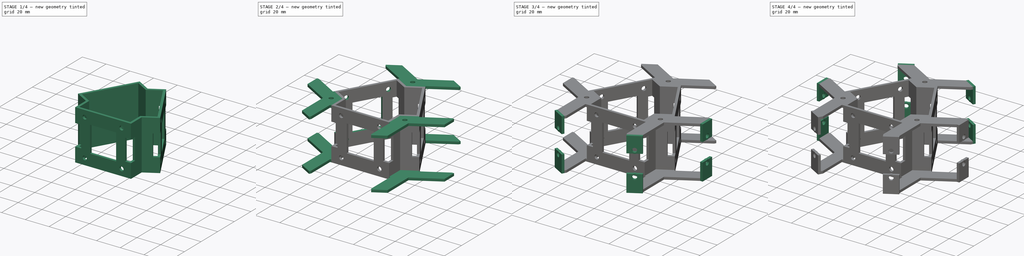
[diagram: build sequence overview — one tinted view per stage of 4, left to right]
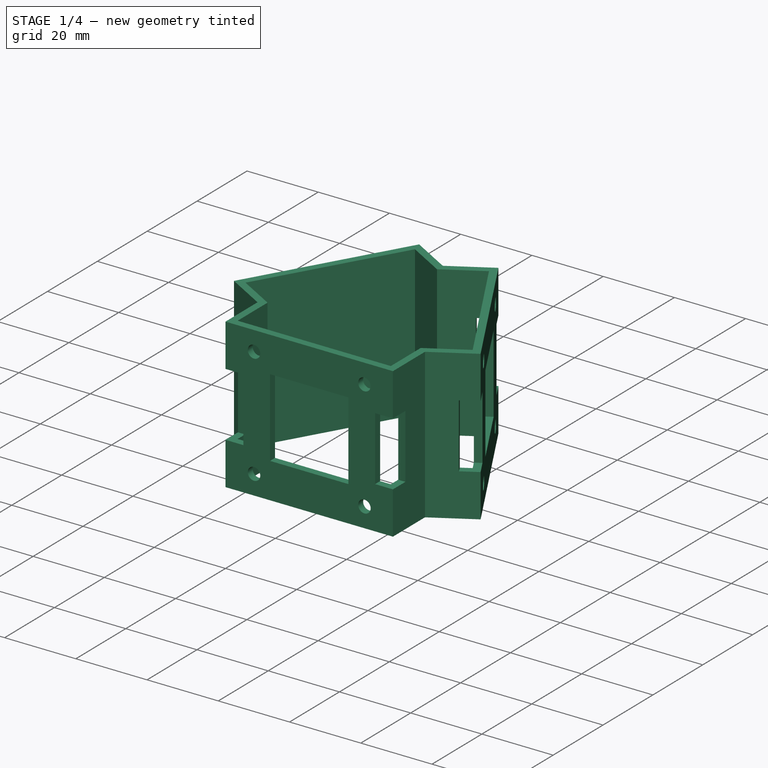
[diagram: stage 1 of 4 — iso view after this stage's code; geometry added in this stage tinted green]
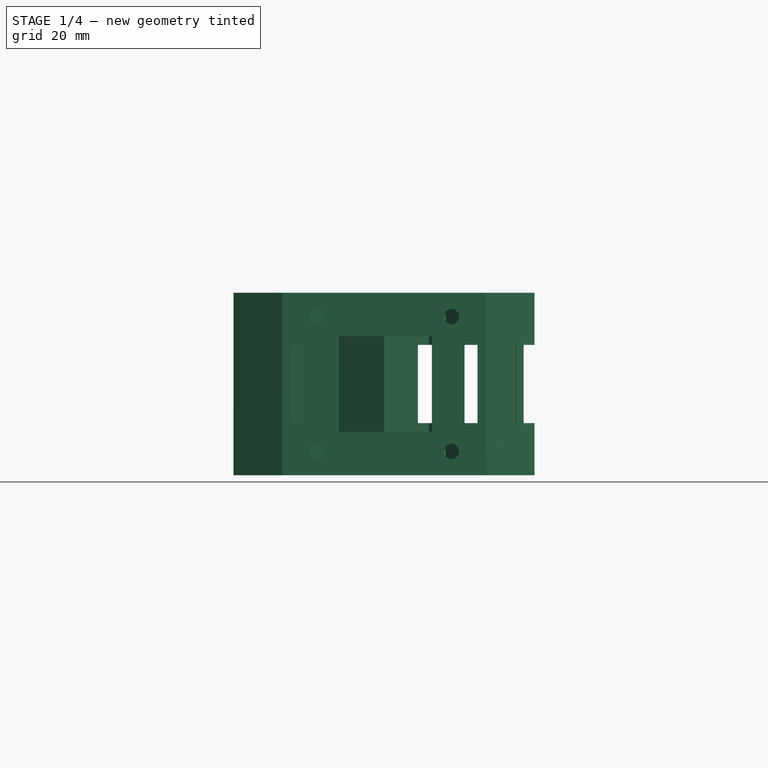
[diagram: stage 1 of 4 — front view after this stage's code; geometry added in this stage tinted green]
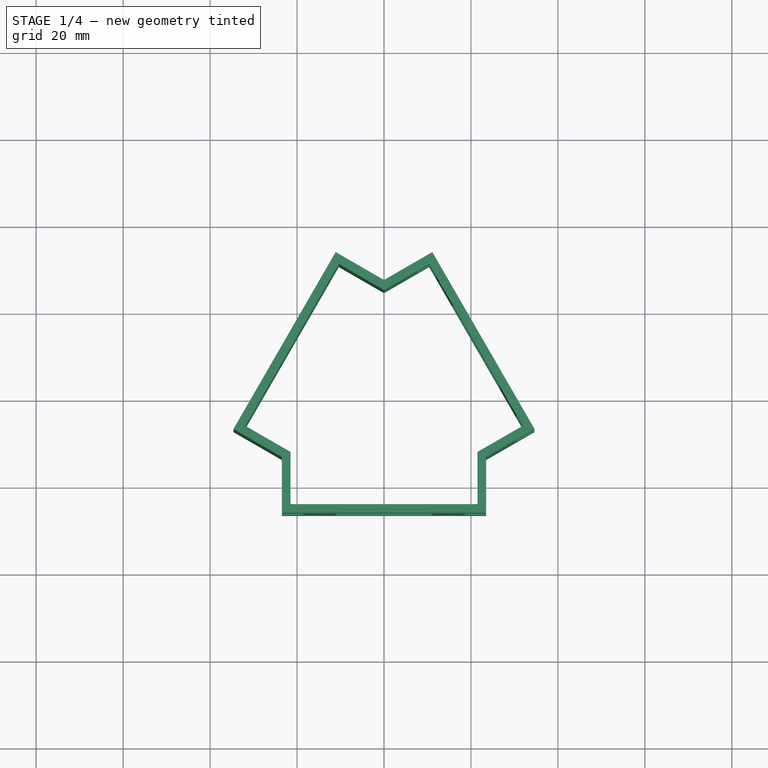
[diagram: stage 1 of 4 — top view after this stage's code; geometry added in this stage tinted green]
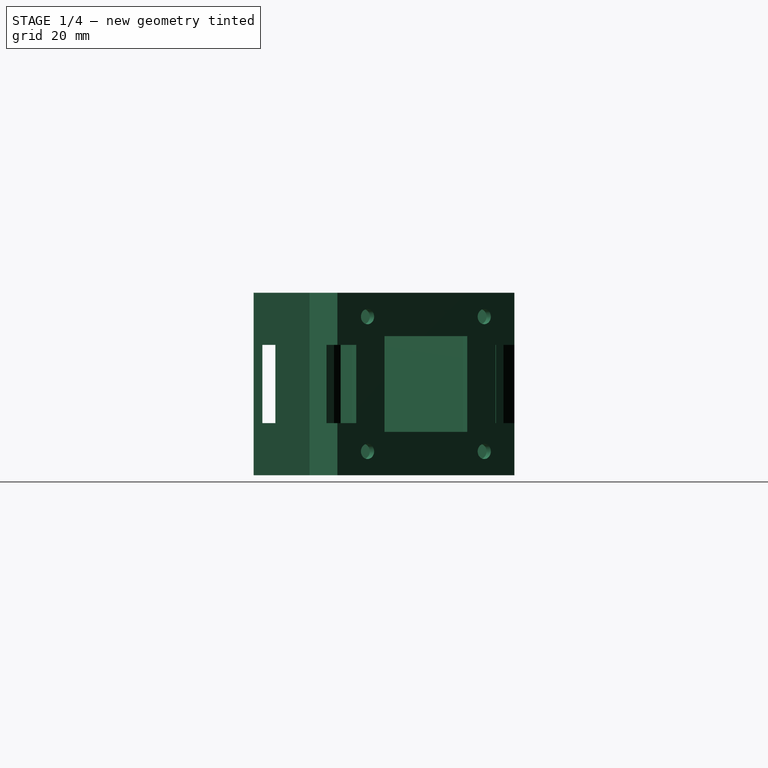
[diagram: stage 1 of 4 — right view after this stage's code; geometry added in this stage tinted green]
FCSTD DOCUMENT  (FreeCAD 0.19R)
Label: core1_motor_sensor_3
License: All rights reserved
LicenseURL: http://en.wikipedia.org/wiki/All_rights_reserved
objects: Sketcher::SketchObject×12, PartDesign::Pad×9, PartDesign::Pocket×3, PartDesign::Body×1
note: 37 computed .brp shape members not serialized (recipe doc carries the construction recipe); baked Part::Feature solids carry a one-line shape summary decoded from their .brp

FEATURE [Sketcher::SketchObject] Sketch
  FullyConstrained = true
  MapMode = 5
  Support = -> [XY_Plane]
  sketch-geometry (22):
    g0: LineSegment StartX=0 StartY=24.8261 StartZ=0 EndX=-21.5 EndY=-12.413 EndZ=0
    g1: LineSegment StartX=-21.5 StartY=-12.413 StartZ=0 EndX=21.5 EndY=-12.413 EndZ=0
    g2: LineSegment StartX=21.5 StartY=-12.413 StartZ=0 EndX=0 EndY=24.8261 EndZ=0
    g3: Circle CenterX=0 CenterY=0 CenterZ=0 NormalX=0 NormalY=0 NormalZ=1 AngleXU=0 Radius=24.8261
    g4: LineSegment StartX=0 StartY=24.8261 StartZ=0 EndX=-10.3923 EndY=30.8261 EndZ=0
    g5: LineSegment StartX=-10.3923 StartY=30.8261 StartZ=0 EndX=-31.8923 EndY=-6.41303 EndZ=0
    g6: LineSegment StartX=-31.8923 StartY=-6.41303 StartZ=0 EndX=-21.5 EndY=-12.413 EndZ=0
    g7: LineSegment StartX=-21.5 StartY=-12.413 StartZ=0 EndX=-21.5 EndY=-24.413 EndZ=0
    g8: LineSegment StartX=-21.5 StartY=-24.413 StartZ=0 EndX=21.5 EndY=-24.413 EndZ=0
    g9: LineSegment StartX=21.5 StartY=-24.413 StartZ=0 EndX=21.5 EndY=-12.413 EndZ=0
    g10: LineSegment StartX=21.5 StartY=-12.413 StartZ=0 EndX=31.8923 EndY=-6.41303 EndZ=0
    g11: LineSegment StartX=31.8923 StartY=-6.41303 StartZ=0 EndX=10.3923 EndY=30.8261 EndZ=0
    g12: LineSegment StartX=10.3923 StartY=30.8261 StartZ=0 EndX=0 EndY=24.8261 EndZ=0
    g13: LineSegment StartX=0 StartY=27.1355 StartZ=0 EndX=-11.1244 EndY=33.5581 EndZ=0
    g14: LineSegment StartX=-11.1244 StartY=33.5581 StartZ=0 EndX=-34.6244 EndY=-7.14508 EndZ=0
    g15: LineSegment StartX=-34.6244 StartY=-7.14508 StartZ=0 EndX=-23.5 EndY=-13.5677 EndZ=0
    g16: LineSegment StartX=-23.5 StartY=-13.5677 StartZ=0 EndX=-23.5 EndY=-26.413 EndZ=0
    g17: LineSegment StartX=-23.5 StartY=-26.413 StartZ=0 EndX=23.5 EndY=-26.413 EndZ=0
    g18: LineSegment StartX=23.5 StartY=-26.413 StartZ=0 EndX=23.5 EndY=-13.5677 EndZ=0
    g19: LineSegment StartX=23.5 StartY=-13.5677 StartZ=0 EndX=34.6244 EndY=-7.14508 EndZ=0
    g20: LineSegment StartX=34.6244 StartY=-7.14508 StartZ=0 EndX=11.1244 EndY=33.5581 EndZ=0
    g21: LineSegment StartX=11.1244 StartY=33.5581 StartZ=0 EndX=0 EndY=27.1355 EndZ=0
  constraints (62):
    c: Coincident(g0,g1)
    c: Coincident(g1,g2)
    c: Coincident(g2,g0)
    c: Equal(g0,g1)
    c: Equal(g0,g2)
    c: PointOnObject(g0,g3)
    c: PointOnObject(g1,g3)
    c: PointOnObject(g2,g3)
    c: Coincident(g3,g-1)
    c: PointOnObject(g2,g-2)
    c: Distance(g1) = 43
    c: Coincident(g0,g4)
    c: Coincident(g4,g5)
    c: Coincident(g5,g6)
    c: Coincident(g6,g0)
    c: Coincident(g6,g7)
    c: Vertical(g7)
    c: Coincident(g7,g8)
    c: Horizontal(g8)
    c: Coincident(g8,g9)
    c: Coincident(g9,g1)
    c: Vertical(g9)
    c: Coincident(g9,g10)
    c: Coincident(g10,g11)
    c: Coincident(g11,g12)
    c: Coincident(g12,g4)
    c: Angle(g4,g0) = 1.5708
    c: Angle(g0,g6) = 1.5708
    c: Angle(g10,g2) = 1.5708
    c: Angle(g2,g12) = 1.5708
    c: Distance(g4) = 12
    c: Distance(g7) = 12
    c: Distance(g10) = 12
    c: Parallel(g0,g5)
    c: Parallel(g11,g2)
    c: PointOnObject(g13,g-2)
    c: Coincident(g13,g14)
    c: Coincident(g14,g15)
    c: Coincident(g15,g16)
    c: Vertical(g16)
    c: Coincident(g16,g17)
    c: Horizontal(g17)
    c: Coincident(g17,g18)
    c: Vertical(g18)
    c: Coincident(g18,g19)
    c: Coincident(g19,g20)
    c: Coincident(g20,g21)
    c: Coincident(g21,g13)
    c: Parallel(g13,g4)
    c: Parallel(g5,g14)
    c: Parallel(g6,g15)
    c: Parallel(g19,g10)
    c: Parallel(g20,g11)
    c: Parallel(g12,g21)
    c: Distance(g13,g4) = 2
    c: Distance(g4,g14) = 2
    c: Distance(g11,g20) = 2
    c: Distance(g10,g19) = 2
    c: Distance(g8,g18) = 2
    c: Distance(g8,g17) = 2
    c: Distance(g7,g16) = 2
    c: Distance(g5,g15) = 2
FEATURE [PartDesign::Pad] Pad
  Direction = (1,1,1)
  Length = 42
  Length2 = 100
  Profile = -> Sketch
  Type = 0
FEATURE [Sketcher::SketchObject] Sketch001
  ExternalGeometry = -> [Pad]
  FullyConstrained = true
  MapMode = 5
  Placement = pos=(0,-26.413,0) rot=(1,0,0;1.5708rad)
  Support = -> [Pad]
  sketch-geometry (20):
    g0: LineSegment StartX=-15.5 StartY=5.5 StartZ=0 EndX=15.5 EndY=5.5 EndZ=0
    g1: LineSegment StartX=15.5 StartY=5.5 StartZ=0 EndX=15.5 EndY=36.5 EndZ=0
    g2: LineSegment StartX=15.5 StartY=36.5 StartZ=0 EndX=-15.5 EndY=36.5 EndZ=0
    g3: LineSegment StartX=-15.5 StartY=36.5 StartZ=0 EndX=-15.5 EndY=5.5 EndZ=0
    g4: Circle CenterX=-15.5 CenterY=5.5 CenterZ=0 NormalX=0 NormalY=0 NormalZ=1 AngleXU=0 Radius=1.75
    g5: Circle CenterX=-15.5 CenterY=36.5 CenterZ=0 NormalX=0 NormalY=0 NormalZ=1 AngleXU=0 Radius=1.75
    g6: Circle CenterX=15.5 CenterY=36.5 CenterZ=0 NormalX=0 NormalY=0 NormalZ=1 AngleXU=0 Radius=1.75
    g7: Circle CenterX=15.5 CenterY=5.5 CenterZ=0 NormalX=0 NormalY=0 NormalZ=1 AngleXU=0 Radius=1.75
    g8: LineSegment StartX=-11 StartY=32 StartZ=0 EndX=11 EndY=32 EndZ=0
    g9: LineSegment StartX=11 StartY=32 StartZ=0 EndX=11 EndY=10 EndZ=0
    g10: LineSegment StartX=11 StartY=10 StartZ=0 EndX=-11 EndY=10 EndZ=0
    g11: LineSegment StartX=-11 StartY=10 StartZ=0 EndX=-11 EndY=32 EndZ=0
    g12: LineSegment StartX=-23.5 StartY=30 StartZ=0 EndX=-18.5 EndY=30 EndZ=0
    g13: LineSegment StartX=-18.5 StartY=30 StartZ=0 EndX=-18.5 EndY=12 EndZ=0
    g14: LineSegment StartX=-18.5 StartY=12 StartZ=0 EndX=-23.5 EndY=12 EndZ=0
    g15: LineSegment StartX=-23.5 StartY=12 StartZ=0 EndX=-23.5 EndY=30 EndZ=0
    g16: LineSegment StartX=23.5 StartY=30 StartZ=0 EndX=18.5 EndY=30 EndZ=0
    g17: LineSegment StartX=18.5 StartY=30 StartZ=0 EndX=18.5 EndY=12 EndZ=0
    g18: LineSegment StartX=18.5 StartY=12 StartZ=0 EndX=23.5 EndY=12 EndZ=0
    g19: LineSegment StartX=23.5 StartY=12 StartZ=0 EndX=23.5 EndY=30 EndZ=0
  constraints (56):
    c: Coincident(g0,g1)
    c: Coincident(g1,g2)
    c: Coincident(g2,g3)
    c: Coincident(g3,g0)
    c: Horizontal(g0)
    c: Horizontal(g2)
    c: Vertical(g1)
    c: Vertical(g3)
    c: Distance(g0,g-4) = 5.5
    c: Distance(g0,g-3) = 8
    c: Distance(g0) = 31
    c: Distance(g3) = 31
    c: Coincident(g4,g0)
    c: Coincident(g5,g2)
    c: Coincident(g6,g1)
    c: Coincident(g7,g0)
    c: Diameter(g5) = 3.5
    c: Diameter(g4) = 3.5
    c: Diameter(g6) = 3.5
    c: Diameter(g7) = 3.5
    c: Coincident(g8,g9)
    c: Coincident(g9,g10)
    c: Coincident(g10,g11)
    c: Coincident(g11,g8)
    c: Horizontal(g8)
    c: Horizontal(g10)
    c: Vertical(g9)
    c: Vertical(g11)
    c: Distance(g9,g-4) = 10
    c: Distance(g-3,g8) = 10
    c: Distance(g8,g-3) = 12.5
    c: Distance(g-4,g9) = 12.5
    c: Coincident(g12,g13)
    c: Coincident(g13,g14)
    c: Coincident(g14,g15)
    c: Coincident(g15,g12)
    c: Horizontal(g12)
    c: Horizontal(g14)
    c: Vertical(g13)
    c: Vertical(g15)
    c: PointOnObject(g12,g-3)
    c: Distance(g12) = 5
    c: Coincident(g16,g17)
    c: Coincident(g17,g18)
    c: Coincident(g18,g19)
    c: Coincident(g19,g16)
    c: Horizontal(g16)
    c: Horizontal(g18)
    c: Vertical(g17)
    c: Vertical(g19)
    c: PointOnObject(g16,g-5)
    c: Distance(g16) = 5
    c: Distance(g-3,g12) = 12
    c: Distance(g-4,g14) = 12
    c: Distance(g-5,g18) = 12
    c: Distance(g-5,g16) = 12
FEATURE [PartDesign::Pocket] Pocket
  BaseFeature = -> Pad
  Length = 5
  Length2 = 100
  Profile = -> Sketch001
  Type = 0
FEATURE [Sketcher::SketchObject] Sketch002
  ExternalGeometry = -> [Pocket]
  FullyConstrained = true
  MapMode = 5
  Placement = pos=(22.8744,13.2065,0) rot=(0.377964,0.654654,0.654654;2.41886rad)
  Support = -> [Pocket]
  sketch-geometry (19):
    g0: Circle CenterX=15.5 CenterY=5.5 CenterZ=0 NormalX=0 NormalY=0 NormalZ=1 AngleXU=0 Radius=1.75
    g1: Circle CenterX=15.5 CenterY=36.5 CenterZ=0 NormalX=0 NormalY=0 NormalZ=1 AngleXU=0 Radius=1.75
    g2: LineSegment StartX=15.5 StartY=5.5 StartZ=0 EndX=15.5 EndY=36.5 EndZ=0
    g3: Circle CenterX=-15.5 CenterY=5.5 CenterZ=0 NormalX=0 NormalY=0 NormalZ=1 AngleXU=0 Radius=1.75
    g4: LineSegment StartX=15.5 StartY=5.5 StartZ=0 EndX=-15.5 EndY=5.5 EndZ=0
    g5: Circle CenterX=-15.5 CenterY=36.5 CenterZ=0 NormalX=0 NormalY=0 NormalZ=1 AngleXU=0 Radius=1.75
    g6: LineSegment StartX=-15.5 StartY=5.5 StartZ=0 EndX=-15.5 EndY=36.5 EndZ=0
    g7: LineSegment StartX=-11 StartY=32 StartZ=0 EndX=11 EndY=32 EndZ=0
    g8: LineSegment StartX=11 StartY=32 StartZ=0 EndX=11 EndY=10 EndZ=0
    g9: LineSegment StartX=11 StartY=10 StartZ=0 EndX=-11 EndY=10 EndZ=0
    g10: LineSegment StartX=-11 StartY=10 StartZ=0 EndX=-11 EndY=32 EndZ=0
    g11: LineSegment StartX=-23.5 StartY=30 StartZ=0 EndX=-18.5 EndY=30 EndZ=0
    g12: LineSegment StartX=-18.5 StartY=30 StartZ=0 EndX=-18.5 EndY=12 EndZ=0
    g13: LineSegment StartX=-18.5 StartY=12 StartZ=0 EndX=-23.5 EndY=12 EndZ=0
    g14: LineSegment StartX=-23.5 StartY=12 StartZ=0 EndX=-23.5 EndY=30 EndZ=0
    g15: LineSegment StartX=23.5 StartY=30 StartZ=0 EndX=18.5 EndY=30 EndZ=0
    g16: LineSegment StartX=18.5 StartY=30 StartZ=0 EndX=18.5 EndY=12 EndZ=0
    g17: LineSegment StartX=18.5 StartY=12 StartZ=0 EndX=23.5 EndY=12 EndZ=0
    g18: LineSegment StartX=23.5 StartY=12 StartZ=0 EndX=23.5 EndY=30 EndZ=0
  constraints (54):
    c: Coincident(g0,g2)
    c: Coincident(g1,g2)
    c: Distance(g2) = 31
    c: Angle(g2) = 1.5708
    c: Coincident(g0,g4)
    c: Coincident(g3,g4)
    c: Distance(g4) = 31
    c: Coincident(g3,g6)
    c: Coincident(g5,g6)
    c: Equal(g2,g6)
    c: Parallel(g6,g2)
    c: Horizontal(g4)
    c: Diameter(g5) = 3.5
    c: Diameter(g1) = 3.5
    c: Diameter(g0) = 3.5
    c: Diameter(g3) = 3.5
    c: Distance(g3,g-5) = 5.5
    c: Distance(g3,g-3) = 8
    c: Coincident(g7,g8)
    c: Coincident(g8,g9)
    c: Coincident(g9,g10)
    c: Coincident(g10,g7)
    c: Horizontal(g7)
    c: Horizontal(g9)
    c: Vertical(g8)
    c: Vertical(g10)
    c: Distance(g9,g-5) = 10
    c: Distance(g7,g-6) = 10
    c: Distance(g7,g-3) = 12.5
    c: Distance(g7,g-4) = 12.5
    c: Coincident(g11,g12)
    c: Coincident(g12,g13)
    c: Coincident(g13,g14)
    c: Coincident(g14,g11)
    c: Horizontal(g11)
    c: Horizontal(g13)
    c: Vertical(g12)
    c: Vertical(g14)
    c: PointOnObject(g11,g-3)
    c: Coincident(g15,g16)
    c: Coincident(g16,g17)
    c: Coincident(g17,g18)
    c: Coincident(g18,g15)
    c: Horizontal(g15)
    c: Horizontal(g17)
    c: Vertical(g16)
    c: Vertical(g18)
    c: PointOnObject(g15,g-4)
    c: Distance(g11) = 5
    c: Distance(g15) = 5
    c: Distance(g15,g-6) = 12
    c: Distance(g16,g-5) = 12
    c: Distance(g11,g-6) = 12
    c: Distance(g12,g-5) = 12
FEATURE [PartDesign::Pocket] Pocket001
  BaseFeature = -> Pocket
  Length = 5
  Length2 = 100
  Profile = -> Sketch002
  Type = 0
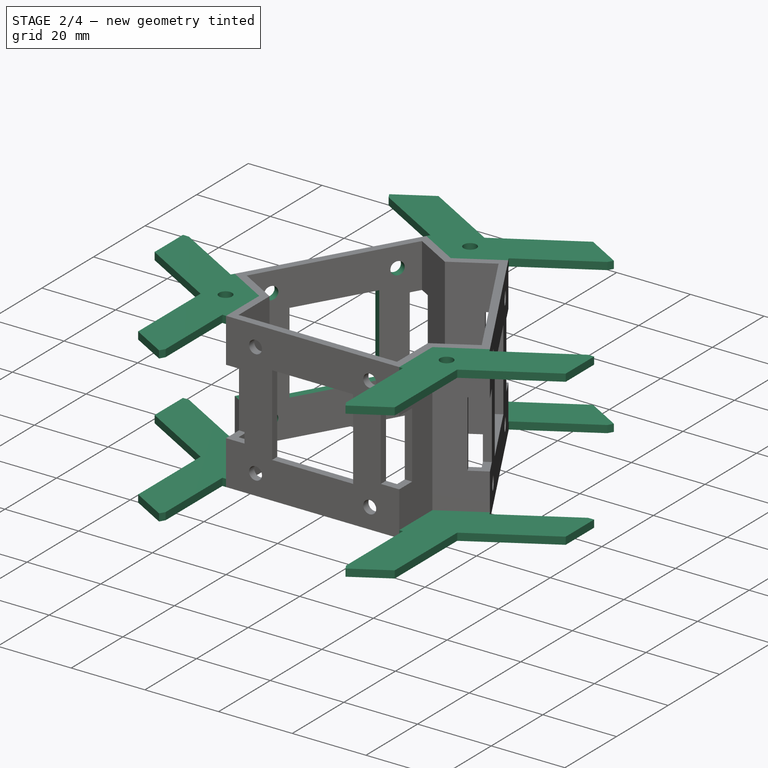
[diagram: stage 2 of 4 — iso view after this stage's code; geometry added in this stage tinted green]
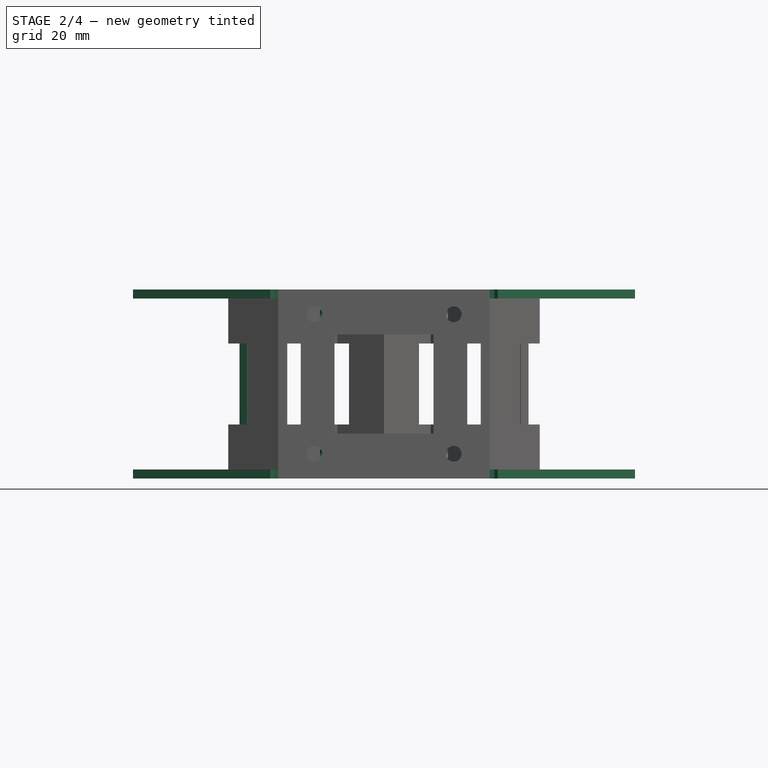
[diagram: stage 2 of 4 — front view after this stage's code; geometry added in this stage tinted green]
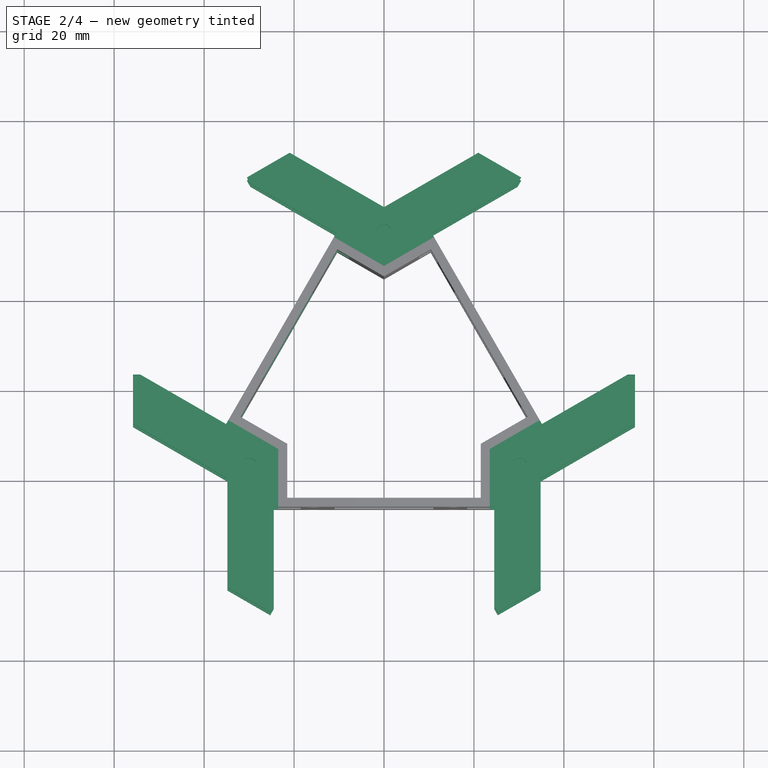
[diagram: stage 2 of 4 — top view after this stage's code; geometry added in this stage tinted green]
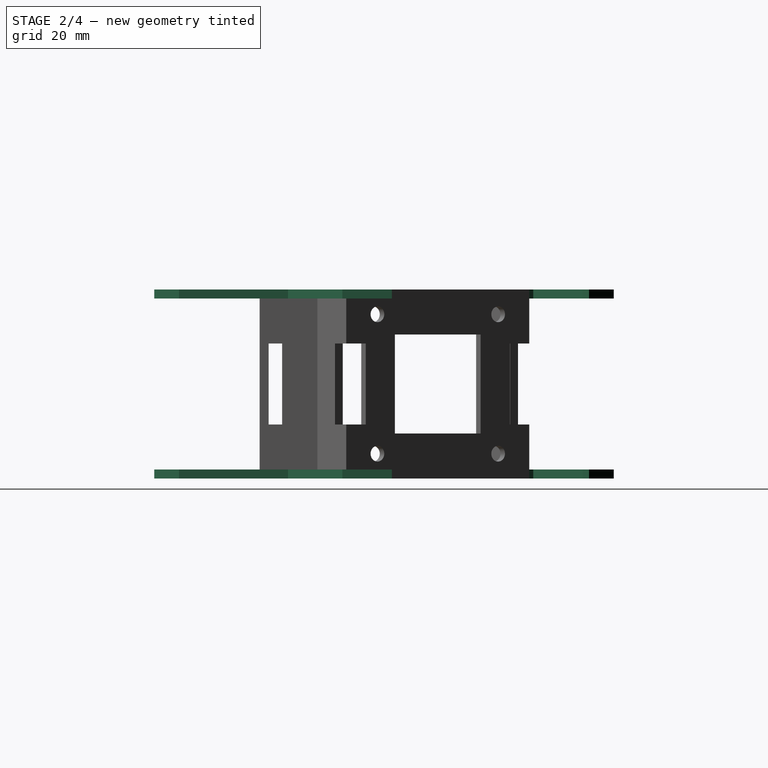
[diagram: stage 2 of 4 — right view after this stage's code; geometry added in this stage tinted green]
FEATURE [Sketcher::SketchObject] Sketch003
  ExternalGeometry = -> [Pocket001]
  FullyConstrained = true
  MapMode = 5
  Placement = pos=(-22.8744,13.2065,0) rot=(-0.377964,0.654654,0.654654;3.86433rad)
  Support = -> [Pocket001]
  sketch-geometry (19):
    g0: Circle CenterX=-15.5 CenterY=36.5 CenterZ=0 NormalX=0 NormalY=0 NormalZ=1 AngleXU=0 Radius=1.75
    g1: Circle CenterX=15.5 CenterY=36.5 CenterZ=0 NormalX=0 NormalY=0 NormalZ=1 AngleXU=0 Radius=1.75
    g2: LineSegment StartX=-15.5 StartY=36.5 StartZ=0 EndX=15.5 EndY=36.5 EndZ=0
    g3: Circle CenterX=-15.5 CenterY=5.5 CenterZ=0 NormalX=0 NormalY=0 NormalZ=1 AngleXU=0 Radius=1.75
    g4: LineSegment StartX=-15.5 StartY=36.5 StartZ=0 EndX=-15.5 EndY=5.5 EndZ=0
    g5: Circle CenterX=15.5 CenterY=5.5 CenterZ=0 NormalX=0 NormalY=0 NormalZ=1 AngleXU=0 Radius=1.75
    g6: LineSegment StartX=-15.5 StartY=5.5 StartZ=0 EndX=15.5 EndY=5.5 EndZ=0
    g7: LineSegment StartX=-11 StartY=32 StartZ=0 EndX=11 EndY=32 EndZ=0
    g8: LineSegment StartX=11 StartY=32 StartZ=0 EndX=11 EndY=10 EndZ=0
    g9: LineSegment StartX=11 StartY=10 StartZ=0 EndX=-11 EndY=10 EndZ=0
    g10: LineSegment StartX=-11 StartY=10 StartZ=0 EndX=-11 EndY=32 EndZ=0
    g11: LineSegment StartX=-23.5 StartY=30 StartZ=0 EndX=-18.5 EndY=30 EndZ=0
    g12: LineSegment StartX=-18.5 StartY=30 StartZ=0 EndX=-18.5 EndY=12 EndZ=0
    g13: LineSegment StartX=-18.5 StartY=12 StartZ=0 EndX=-23.5 EndY=12 EndZ=0
    g14: LineSegment StartX=-23.5 StartY=12 StartZ=0 EndX=-23.5 EndY=30 EndZ=0
    g15: LineSegment StartX=23.5 StartY=30 StartZ=0 EndX=18.5 EndY=30 EndZ=0
    g16: LineSegment StartX=18.5 StartY=30 StartZ=0 EndX=18.5 EndY=12 EndZ=0
    g17: LineSegment StartX=18.5 StartY=12 StartZ=0 EndX=23.5 EndY=12 EndZ=0
    g18: LineSegment StartX=23.5 StartY=12 StartZ=0 EndX=23.5 EndY=30 EndZ=0
  constraints (54):
    c: Diameter(g0) = 3.5
    c: Diameter(g1) = 3.5
    c: Coincident(g0,g2)
    c: Coincident(g1,g2)
    c: Distance(g2) = 31
    c: Angle(g2) = 0
    c: Diameter(g3) = 3.5
    c: Coincident(g0,g4)
    c: Coincident(g3,g4)
    c: Equal(g4,g2)
    c: Perpendicular(g4,g2)
    c: Diameter(g5) = 3.5
    c: Coincident(g3,g6)
    c: Coincident(g5,g6)
    c: Equal(g2,g6)
    c: Parallel(g6,g2)
    c: Distance(g3,g-4) = 5.5
    c: Distance(g3,g-3) = 8
    c: Coincident(g7,g8)
    c: Coincident(g8,g9)
    c: Coincident(g9,g10)
    c: Coincident(g10,g7)
    c: Horizontal(g7)
    c: Horizontal(g9)
    c: Vertical(g8)
    c: Vertical(g10)
    c: Coincident(g11,g12)
    c: Coincident(g12,g13)
    c: Coincident(g13,g14)
    c: Coincident(g14,g11)
    c: Horizontal(g11)
    c: Horizontal(g13)
    c: Vertical(g12)
    c: Vertical(g14)
    c: PointOnObject(g11,g-3)
    c: Coincident(g15,g16)
    c: Coincident(g16,g17)
    c: Coincident(g17,g18)
    c: Coincident(g18,g15)
    c: Horizontal(g15)
    c: Horizontal(g17)
    c: Vertical(g16)
    c: Vertical(g18)
    c: PointOnObject(g15,g-5)
    c: Distance(g-3,g7) = 10
    c: Distance(g8,g-4) = 10
    c: Distance(g9,g-3) = 12.5
    c: Distance(g8,g-5) = 12.5
    c: Distance(g11) = 5
    c: Distance(g15) = 5
    c: Distance(g-5,g17) = 12
    c: Distance(g-5,g15) = 12
    c: Distance(g-3,g11) = 12
    c: Distance(g12,g-4) = 12
FEATURE [PartDesign::Pocket] Pocket002
  BaseFeature = -> Pocket001
  Length = 5
  Length2 = 100
  Profile = -> Sketch003
  Type = 0
FEATURE [Sketcher::SketchObject] Sketch004
  ExternalGeometry = -> [Pocket002]
  FullyConstrained = true
  MapMode = 5
  Placement = pos=(0,0,42) rot=(0,0,1;0rad)
  Support = -> [Pocket002]
  sketch-geometry (62):
    g0: LineSegment StartX=-23.5 StartY=-26.413 StartZ=0 EndX=-24.5 EndY=-26.413 EndZ=0
    g1: LineSegment StartX=-24.5 StartY=-26.413 StartZ=0 EndX=-24.5 EndY=-52.413 EndZ=0
    g2: LineSegment StartX=23.5 StartY=-26.413 StartZ=0 EndX=24.5 EndY=-26.413 EndZ=0
    g3: LineSegment StartX=24.5 StartY=-26.413 StartZ=0 EndX=24.5 EndY=-52.413 EndZ=0
    g4: LineSegment StartX=34.6244 StartY=-7.14508 StartZ=0 EndX=35.1244 EndY=-8.01111 EndZ=0
    g5: LineSegment StartX=35.1244 StartY=-8.01111 StartZ=0 EndX=57.641 EndY=4.98889 EndZ=0
    g6: LineSegment StartX=11.1244 StartY=33.5581 StartZ=0 EndX=10.6244 EndY=34.4241 EndZ=0
    g7: LineSegment StartX=10.6244 StartY=34.4241 StartZ=0 EndX=33.141 EndY=47.4241 EndZ=0
    g8: LineSegment StartX=-11.1244 StartY=33.5581 StartZ=0 EndX=-10.6244 EndY=34.4241 EndZ=0
    g9: LineSegment StartX=-10.6244 StartY=34.4241 StartZ=0 EndX=-33.141 EndY=47.4241 EndZ=0
    g10: LineSegment StartX=-34.6244 StartY=-7.14508 StartZ=0 EndX=-35.1244 EndY=-8.01111 EndZ=0
    g11: LineSegment StartX=-35.1244 StartY=-8.01111 StartZ=0 EndX=-57.641 EndY=4.98889 EndZ=0
    g12: LineSegment StartX=-55.7962 StartY=0 StartZ=0 EndX=-27.8981 EndY=-48.3209 EndZ=0
    g13: LineSegment StartX=-27.8981 StartY=-48.3209 StartZ=0 EndX=27.8981 EndY=-48.3209 EndZ=0
    g14: LineSegment StartX=27.8981 StartY=-48.3209 StartZ=0 EndX=55.7962 EndY=0 EndZ=0
    g15: LineSegment StartX=55.7962 StartY=0 StartZ=0 EndX=27.8981 EndY=48.3209 EndZ=0
    g16: LineSegment StartX=27.8981 StartY=48.3209 StartZ=0 EndX=-27.8981 EndY=48.3209 EndZ=0
    g17: LineSegment StartX=-27.8981 StartY=48.3209 StartZ=0 EndX=-55.7962 EndY=0 EndZ=0
    g18: Circle CenterX=0 CenterY=0 CenterZ=0 NormalX=0 NormalY=0 NormalZ=1 AngleXU=0 Radius=55.7962
    g19: LineSegment StartX=-23.5 StartY=-13.5677 StartZ=0 EndX=-23.5 EndY=-26.413 EndZ=0
    g20: LineSegment StartX=-23.5 StartY=-26.413 StartZ=0 EndX=-24.5 EndY=-26.413 EndZ=0
    g21: LineSegment StartX=-24.5 StartY=-26.413 StartZ=0 EndX=-24.5 EndY=-48.4352 EndZ=0
    g22: LineSegment StartX=-24.5 StartY=-48.4352 StartZ=0 EndX=-25.3 EndY=-49.8209 EndZ=0
    g23: LineSegment StartX=-25.3 StartY=-49.8209 StartZ=0 EndX=-34.8263 EndY=-44.3209 EndZ=0
    g24: LineSegment StartX=-34.8263 StartY=-44.3209 StartZ=0 EndX=-34.8263 EndY=-20.107 EndZ=0
    g25: LineSegment StartX=-34.8263 StartY=-20.107 StartZ=0 EndX=-55.7962 EndY=-8 EndZ=0
    g26: LineSegment StartX=-55.7962 StartY=-8 StartZ=0 EndX=-55.7962 EndY=3 EndZ=0
    g27: LineSegment StartX=-55.7962 StartY=3 StartZ=0 EndX=-54.1962 EndY=3 EndZ=0
    g28: LineSegment StartX=-54.1962 StartY=3 StartZ=0 EndX=-35.1244 EndY=-8.01111 EndZ=0
    g29: LineSegment StartX=-35.1244 StartY=-8.01111 StartZ=0 EndX=-34.6244 EndY=-7.14508 EndZ=0
    g30: LineSegment StartX=-34.6244 StartY=-7.14508 StartZ=0 EndX=-23.5 EndY=-13.5677 EndZ=0
    g31: LineSegment StartX=23.5 StartY=-13.5677 StartZ=0 EndX=23.5 EndY=-26.413 EndZ=0
    g32: LineSegment StartX=23.5 StartY=-26.413 StartZ=0 EndX=24.5 EndY=-26.413 EndZ=0
    g33: LineSegment StartX=24.5 StartY=-26.413 StartZ=0 EndX=24.5 EndY=-48.4352 EndZ=0
    g34: LineSegment StartX=24.5 StartY=-48.4352 StartZ=0 EndX=25.3 EndY=-49.8209 EndZ=0
    g35: LineSegment StartX=25.3 StartY=-49.8209 StartZ=0 EndX=34.8263 EndY=-44.3209 EndZ=0
    g36: LineSegment StartX=34.8263 StartY=-44.3209 StartZ=0 EndX=34.8263 EndY=-20.107 EndZ=0
    g37: LineSegment StartX=34.8263 StartY=-20.107 StartZ=0 EndX=55.7962 EndY=-8 EndZ=0
    g38: LineSegment StartX=55.7962 StartY=-8 StartZ=0 EndX=55.7962 EndY=3 EndZ=0
    g39: LineSegment StartX=55.7962 StartY=3 StartZ=0 EndX=54.1962 EndY=3 EndZ=0
    g40: LineSegment StartX=54.1962 StartY=3 StartZ=0 EndX=35.1244 EndY=-8.01111 EndZ=0
    g41: LineSegment StartX=35.1244 StartY=-8.01111 StartZ=0 EndX=34.6244 EndY=-7.14508 EndZ=0
    g42: LineSegment StartX=34.6244 StartY=-7.14508 StartZ=0 EndX=23.5 EndY=-13.5677 EndZ=0
    g43: LineSegment StartX=0 StartY=27.1355 StartZ=0 EndX=-11.1244 EndY=33.5581 EndZ=0
    g44: LineSegment StartX=-11.1244 StartY=33.5581 StartZ=0 EndX=-10.6244 EndY=34.4241 EndZ=0
    g45: LineSegment StartX=-10.6244 StartY=34.4241 StartZ=0 EndX=-29.6962 EndY=45.4352 EndZ=0
    g46: LineSegment StartX=-29.6962 StartY=45.4352 StartZ=0 EndX=-30.4962 EndY=46.8209 EndZ=0
    g47: LineSegment StartX=-30.4962 StartY=46.8209 StartZ=0 EndX=-20.9699 EndY=52.3209 EndZ=0
    g48: LineSegment StartX=-20.9699 StartY=52.3209 StartZ=0 EndX=0 EndY=40.2139 EndZ=0
    g49: LineSegment StartX=0 StartY=40.2139 StartZ=0 EndX=20.9699 EndY=52.3209 EndZ=0
    g50: LineSegment StartX=20.9699 StartY=52.3209 StartZ=0 EndX=30.4962 EndY=46.8209 EndZ=0
    g51: LineSegment StartX=30.4962 StartY=46.8209 StartZ=0 EndX=29.6962 EndY=45.4352 EndZ=0
    g52: LineSegment StartX=29.6962 StartY=45.4352 StartZ=0 EndX=10.6244 EndY=34.4241 EndZ=0
    g53: LineSegment StartX=10.6244 StartY=34.4241 StartZ=0 EndX=11.1244 EndY=33.5581 EndZ=0
    g54: LineSegment StartX=11.1244 StartY=33.5581 StartZ=0 EndX=0 EndY=27.1355 EndZ=0
    g55: LineSegment StartX=0 StartY=34.641 StartZ=0 EndX=-30 EndY=-17.3205 EndZ=0
    g56: LineSegment StartX=-30 StartY=-17.3205 StartZ=0 EndX=30 EndY=-17.3205 EndZ=0
    g57: LineSegment StartX=30 StartY=-17.3205 StartZ=0 EndX=0 EndY=34.641 EndZ=0
    g58: Circle CenterX=0 CenterY=0 CenterZ=0 NormalX=0 NormalY=0 NormalZ=1 AngleXU=0 Radius=34.641
    g59: Circle CenterX=0 CenterY=34.641 CenterZ=0 NormalX=0 NormalY=0 NormalZ=1 AngleXU=0 Radius=1.75
    g60: Circle CenterX=-30 CenterY=-17.3205 CenterZ=0 NormalX=0 NormalY=0 NormalZ=1 AngleXU=0 Radius=1.75
    g61: Circle CenterX=30 CenterY=-17.3205 CenterZ=0 NormalX=0 NormalY=0 NormalZ=1 AngleXU=0 Radius=1.75
  constraints (162):
    c: Coincident(g-4,g0)
    c: Horizontal(g0)
    c: Coincident(g0,g1)
    c: Vertical(g1)
    c: Coincident(g-5,g2)
    c: Coincident(g2,g3)
    c: Vertical(g3)
    c: Coincident(g-6,g4)
    c: Coincident(g4,g5)
    c: Coincident(g-7,g6)
    c: Coincident(g6,g7)
    c: Coincident(g-8,g8)
    c: Coincident(g8,g9)
    c: Coincident(g-3,g10)
    c: Coincident(g10,g11)
    c: Parallel(g8,g-9)
    c: Parallel(g10,g-9)
    c: Parallel(g-10,g4)
    c: Parallel(g6,g-10)
    c: Angle(g9,g8) = 1.5708
    c: Angle(g10,g11) = 1.5708
    c: Angle(g5,g4) = 1.5708
    c: Distance(g8) = 1
    c: Distance(g6) = 1
    c: Distance(g4) = 1
    c: Distance(g2) = 1
    c: Distance(g0) = 1
    c: Distance(g10) = 1
    c: Distance(g11) = 26
    c: Distance(g9) = 26
    c: Distance(g7) = 26
    c: Distance(g5) = 26
    c: Angle(g6,g7) = 1.5708
    c: Horizontal(g2)
    c: Distance(g3) = 26
    c: Distance(g1) = 26
    c: Coincident(g12,g13)
    c: Coincident(g13,g14)
    c: Coincident(g14,g15)
    c: Coincident(g15,g16)
    c: Coincident(g16,g17)
    c: Coincident(g17,g12)
    c: Equal(g12, g13-g17) x5
    c: PointOnObject(g12,g18)
    c: PointOnObject(g13,g18)
    c: PointOnObject(g14,g18)
    c: PointOnObject(g15,g18)
    c: PointOnObject(g16,g18)
    c: PointOnObject(g17,g18)
    c: Coincident(g18,g-1)
    c: PointOnObject(g17,g-1)
    c: Coincident(g-4,g19)
    c: Coincident(g19,g0)
    c: Coincident(g19,g20)
    c: Coincident(g20,g0)
    c: Coincident(g20,g21)
    c: PointOnObject(g21,g1)
    c: Coincident(g21,g22)
    c: Coincident(g22,g23)
    c: Coincident(g23,g24)
    c: Vertical(g24)
    c: Coincident(g24,g25)
    c: Coincident(g25,g26)
    c: Vertical(g26)
    c: Coincident(g26,g27)
    c: PointOnObject(g27,g11)
    c: Coincident(g27,g28)
    c: Coincident(g28,g10)
    c: Coincident(g28,g29)
    c: Coincident(g29,g10)
    c: Coincident(g29,g30)
    c: Coincident(g30,g19)
    c: Angle(g22,g23) = 1.5708
    c: Angle(g26,g27) = 1.5708
    c: PointOnObject(g12,g23)
    c: PointOnObject(g12,g26)
    c: Tangent(g23,g18)
    c: Distance(g12,g22) = 3
    c: Distance(g12,g23) = 8
    c: Parallel(g28,g25)
    c: Distance(g26,g12) = 3
    c: Distance(g12,g25) = 8
    c: Distance(g27) = 1.6
    c: Coincident(g-6,g31)
    c: Coincident(g31,g2)
    c: Coincident(g31,g32)
    c: Coincident(g32,g2)
    c: Coincident(g32,g33)
    c: PointOnObject(g33,g3)
    c: Coincident(g33,g34)
    c: Coincident(g34,g35)
    c: Coincident(g35,g36)
    c: Vertical(g36)
    c: Coincident(g36,g37)
    c: Coincident(g37,g38)
    c: Vertical(g38)
    c: Coincident(g38,g39)
    c: PointOnObject(g39,g5)
    c: Horizontal(g39)
    c: Coincident(g39,g40)
    c: Coincident(g40,g4)
    c: Coincident(g40,g41)
    c: Coincident(g41,g4)
    c: Coincident(g41,g42)
    c: Coincident(g42,g31)
    c: Angle(g35,g34) = 1.5708
    c: PointOnObject(g14,g38)
    c: PointOnObject(g13,g35)
    c: Tangent(g18,g35)
    c: Distance(g13,g34) = 3
    c: Distance(g14,g38) = 3
    c: Distance(g38) = 11
    c: Distance(g35) = 11
    c: Parallel(g40,g37)
    c: Coincident(g-8,g43)
    c: Coincident(g43,g8)
    c: Coincident(g43,g44)
    c: Coincident(g44,g8)
    c: Coincident(g44,g45)
    c: PointOnObject(g45,g9)
    c: Coincident(g45,g46)
    c: Coincident(g46,g47)
    c: Coincident(g47,g48)
    c: PointOnObject(g48,g-2)
    c: Coincident(g48,g49)
    c: Coincident(g49,g50)
    c: Coincident(g50,g51)
    c: PointOnObject(g51,g7)
    c: Coincident(g51,g52)
    c: Coincident(g52,g6)
    c: Coincident(g52,g53)
    c: Coincident(g53,g6)
    c: Coincident(g53,g54)
    c: Coincident(g54,g43)
    c: Angle(g46,g47) = 1.5708
    c: Angle(g50,g51) = 1.5708
    c: PointOnObject(g16,g47)
    c: PointOnObject(g15,g50)
    c: Tangent(g18,g47)
    c: Tangent(g50,g18)
    c: Distance(g16,g46) = 3
    c: Distance(g50,g15) = 3
    c: Distance(g47) = 11
    c: Distance(g50) = 11
    c: Parallel(g48,g43)
    c: Coincident(g55,g56)
    c: Coincident(g56,g57)
    c: Coincident(g57,g55)
    c: Equal(g55,g56)
    c: Equal(g55,g57)
    c: PointOnObject(g55,g58)
    c: PointOnObject(g56,g58)
    c: PointOnObject(g57,g58)
    c: Coincident(g58,g-1)
    c: PointOnObject(g57,g-2)
    c: Distance(g55) = 60
    c: Coincident(g59,g55)
    c: Coincident(g60,g55)
    c: Coincident(g61,g56)
    c: Diameter(g59) = 3.5
    c: Diameter(g60) = 3.5
    c: Diameter(g61) = 3.5
FEATURE [PartDesign::Pad] Pad001
  BaseFeature = -> Pocket002
  Direction = (1,1,1)
  Length = 2
  Length2 = 100
  Profile = -> Sketch004
  Reversed = true
  Type = 0
FEATURE [Sketcher::SketchObject] Sketch005
  ExternalGeometry = -> [Pad001]
  FullyConstrained = true
  MapMode = 5
  Placement = pos=(0,0,0) rot=(1,0,0;3.14159rad)
  Support = -> [Pad001]
  sketch-geometry (36):
    g0: LineSegment StartX=-24.5 StartY=48.4352 StartZ=0 EndX=-25.3 EndY=49.8209 EndZ=0
    g1: LineSegment StartX=-25.3 StartY=49.8209 StartZ=0 EndX=-34.8263 EndY=44.3209 EndZ=0
    g2: LineSegment StartX=-34.8263 StartY=44.3209 StartZ=0 EndX=-34.8263 EndY=20.107 EndZ=0
    g3: LineSegment StartX=-34.8263 StartY=20.107 StartZ=0 EndX=-55.7962 EndY=8 EndZ=0
    g4: LineSegment StartX=-55.7962 StartY=8 StartZ=0 EndX=-55.7962 EndY=-3 EndZ=0
    g5: LineSegment StartX=-55.7962 StartY=-3 StartZ=0 EndX=-54.1962 EndY=-3 EndZ=0
    g6: LineSegment StartX=-54.1962 StartY=-3 StartZ=0 EndX=-35.1244 EndY=8.01111 EndZ=0
    g7: LineSegment StartX=-35.1244 StartY=8.01111 StartZ=0 EndX=-34.6244 EndY=7.14508 EndZ=0
    g8: LineSegment StartX=-34.6244 StartY=7.14508 StartZ=0 EndX=-23.5 EndY=13.5677 EndZ=0
    g9: LineSegment StartX=-23.5 StartY=13.5677 StartZ=0 EndX=-23.5 EndY=26.413 EndZ=0
    g10: LineSegment StartX=-23.5 StartY=26.413 StartZ=0 EndX=-24.5 EndY=26.413 EndZ=0
    g11: LineSegment StartX=-24.5 StartY=26.413 StartZ=0 EndX=-24.5 EndY=48.4352 EndZ=0
    g12: LineSegment StartX=24.5 StartY=48.4352 StartZ=0 EndX=25.3 EndY=49.8209 EndZ=0
    g13: LineSegment StartX=25.3 StartY=49.8209 StartZ=0 EndX=34.8263 EndY=44.3209 EndZ=0
    g14: LineSegment StartX=34.8263 StartY=44.3209 StartZ=0 EndX=34.8263 EndY=20.107 EndZ=0
    g15: LineSegment StartX=34.8263 StartY=20.107 StartZ=0 EndX=55.7962 EndY=8 EndZ=0
    g16: LineSegment StartX=55.7962 StartY=8 StartZ=0 EndX=55.7962 EndY=-3 EndZ=0
    g17: LineSegment StartX=55.7962 StartY=-3 StartZ=0 EndX=54.1962 EndY=-3 EndZ=0
    g18: LineSegment StartX=54.1962 StartY=-3 StartZ=0 EndX=35.1244 EndY=8.01111 EndZ=0
    g19: LineSegment StartX=35.1244 StartY=8.01111 StartZ=0 EndX=34.6244 EndY=7.14508 EndZ=0
    g20: LineSegment StartX=34.6244 StartY=7.14508 StartZ=0 EndX=23.5 EndY=13.5677 EndZ=0
    g21: LineSegment StartX=23.5 StartY=13.5677 StartZ=0 EndX=23.5 EndY=26.413 EndZ=0
    g22: LineSegment StartX=23.5 StartY=26.413 StartZ=0 EndX=24.5 EndY=26.413 EndZ=0
    g23: LineSegment StartX=24.5 StartY=26.413 StartZ=0 EndX=24.5 EndY=48.4352 EndZ=0
    g24: LineSegment StartX=0 StartY=-27.1355 StartZ=0 EndX=11.1244 EndY=-33.5581 EndZ=0
    g25: LineSegment StartX=11.1244 StartY=-33.5581 StartZ=0 EndX=10.6244 EndY=-34.4241 EndZ=0
    g26: LineSegment StartX=10.6244 StartY=-34.4241 StartZ=0 EndX=29.6962 EndY=-45.4352 EndZ=0
    g27: LineSegment StartX=29.6962 StartY=-45.4352 StartZ=0 EndX=30.4962 EndY=-46.8209 EndZ=0
    g28: LineSegment StartX=30.4962 StartY=-46.8209 StartZ=0 EndX=20.9699 EndY=-52.3209 EndZ=0
    g29: LineSegment StartX=20.9699 StartY=-52.3209 StartZ=0 EndX=0 EndY=-40.2139 EndZ=0
    g30: LineSegment StartX=0 StartY=-40.2139 StartZ=0 EndX=-20.9699 EndY=-52.3209 EndZ=0
    g31: LineSegment StartX=-20.9699 StartY=-52.3209 StartZ=0 EndX=-30.4962 EndY=-46.8209 EndZ=0
    g32: LineSegment StartX=-30.4962 StartY=-46.8209 StartZ=0 EndX=-29.6962 EndY=-45.4352 EndZ=0
    g33: LineSegment StartX=-29.6962 StartY=-45.4352 StartZ=0 EndX=-10.6244 EndY=-34.4241 EndZ=0
    g34: LineSegment StartX=-10.6244 StartY=-34.4241 StartZ=0 EndX=-11.1244 EndY=-33.5581 EndZ=0
    g35: LineSegment StartX=-11.1244 StartY=-33.5581 StartZ=0 EndX=0 EndY=-27.1355 EndZ=0
  constraints (72):
    c: Coincident(g-3,g0)
    c: Coincident(g0,g-3)
    c: Coincident(g0,g1)
    c: Coincident(g1,g-4)
    c: Coincident(g1,g2)
    c: Coincident(g2,g-4)
    c: Coincident(g2,g3)
    c: Coincident(g3,g-5)
    c: Coincident(g3,g4)
    c: Coincident(g4,g-5)
    c: Coincident(g4,g5)
    c: Coincident(g5,g-6)
    c: Coincident(g5,g6)
    c: Coincident(g6,g-6)
    c: Coincident(g6,g7)
    c: Coincident(g7,g-7)
    c: Coincident(g7,g8)
    c: Coincident(g8,g-7)
    c: Coincident(g8,g9)
    c: Coincident(g9,g-8)
    c: Coincident(g9,g10)
    c: Coincident(g10,g-8)
    c: Coincident(g10,g11)
    c: Coincident(g11,g0)
    c: Coincident(g-10,g12)
    c: Coincident(g12,g-11)
    c: Coincident(g12,g13)
    c: Coincident(g13,g-11)
    c: Coincident(g13,g14)
    c: Coincident(g14,g-12)
    c: Coincident(g14,g15)
    c: Coincident(g15,g-12)
    c: Coincident(g15,g16)
    c: Coincident(g16,g-13)
    c: Coincident(g16,g17)
    c: Coincident(g17,g-13)
    c: Coincident(g17,g18)
    c: Coincident(g18,g-14)
    c: Coincident(g18,g19)
    c: Coincident(g19,g-14)
    c: Coincident(g19,g20)
    c: Coincident(g20,g-9)
    c: Coincident(g20,g21)
    c: Coincident(g21,g-9)
    c: Coincident(g21,g22)
    c: Coincident(g22,g-10)
    c: Coincident(g22,g23)
    c: Coincident(g23,g12)
    c: Coincident(g-15,g24)
    c: Coincident(g24,g-15)
    c: Coincident(g24,g25)
    c: Coincident(g25,g-20)
    c: Coincident(g25,g26)
    c: Coincident(g26,g-20)
    c: Coincident(g26,g27)
    c: Coincident(g27,g-19)
    c: Coincident(g27,g28)
    c: Coincident(g28,g-19)
    c: Coincident(g28,g29)
    c: Coincident(g29,g-18)
    c: Coincident(g29,g30)
    c: Coincident(g30,g-18)
    c: Coincident(g30,g31)
    c: Coincident(g31,g-17)
    c: Coincident(g31,g32)
    c: Coincident(g32,g-17)
    c: Coincident(g32,g33)
    c: Coincident(g33,g-16)
    c: Coincident(g33,g34)
    c: Coincident(g34,g-16)
    c: Coincident(g34,g35)
    c: Coincident(g35,g24)
FEATURE [PartDesign::Pad] Pad002
  BaseFeature = -> Pad001
  Direction = (1,1,1)
  Length = 2
  Length2 = 100
  Profile = -> Sketch005
  Reversed = true
  Type = 0
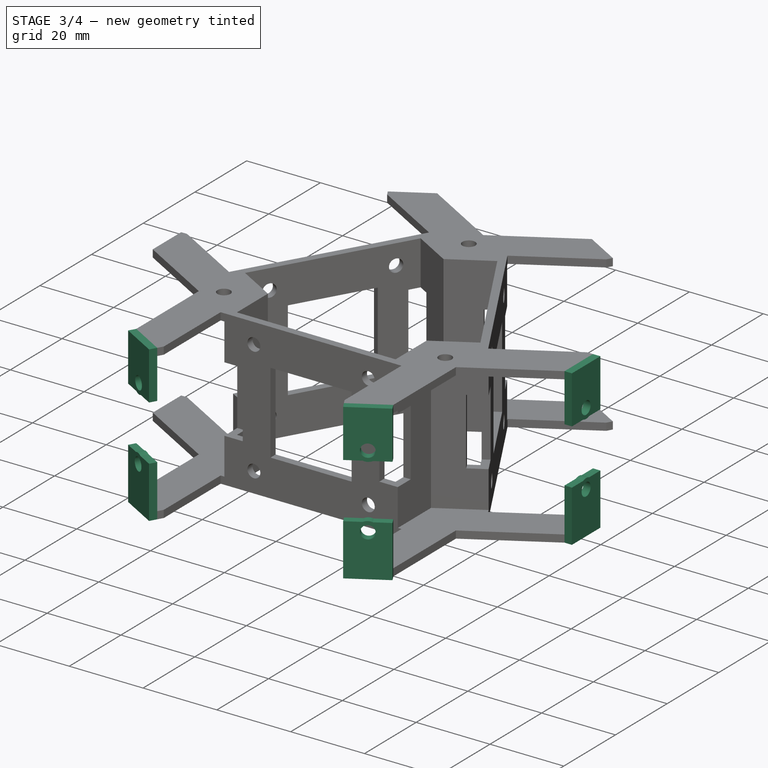
[diagram: stage 3 of 4 — iso view after this stage's code; geometry added in this stage tinted green]
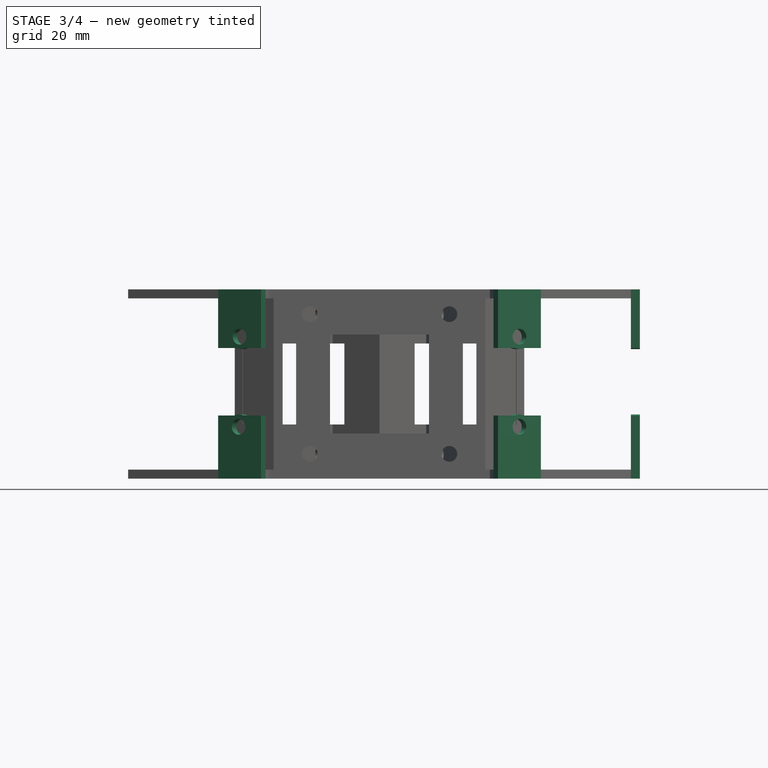
[diagram: stage 3 of 4 — front view after this stage's code; geometry added in this stage tinted green]
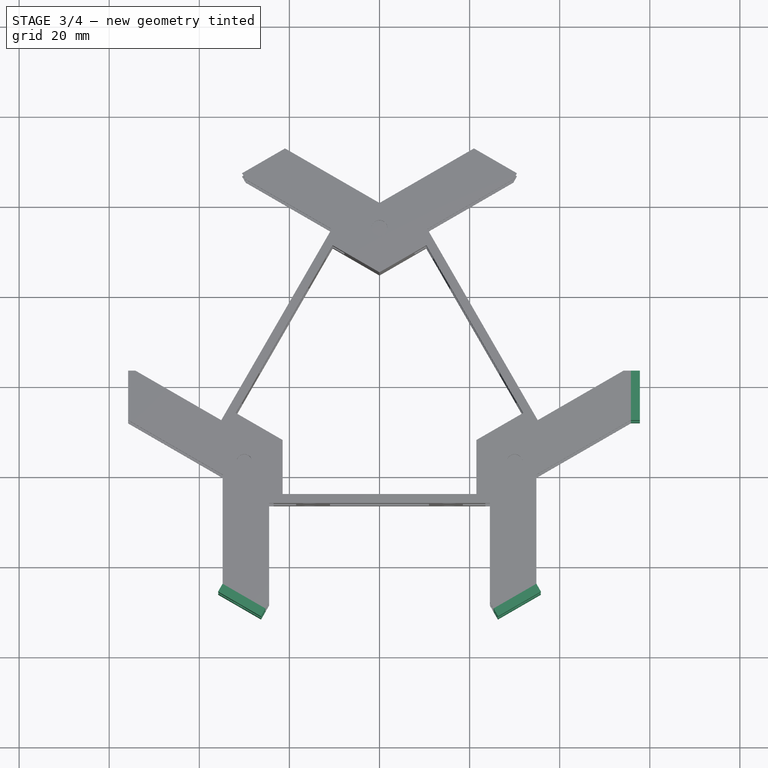
[diagram: stage 3 of 4 — top view after this stage's code; geometry added in this stage tinted green]
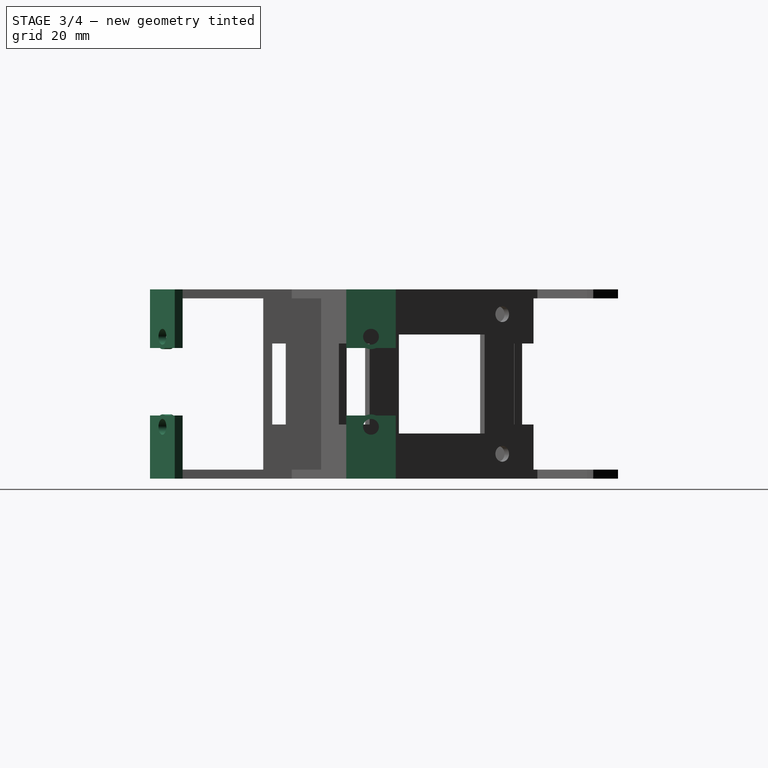
[diagram: stage 3 of 4 — right view after this stage's code; geometry added in this stage tinted green]
FEATURE [Sketcher::SketchObject] Sketch006
  ExternalGeometry = -> [Pad002]
  FullyConstrained = true
  MapMode = 5
  Placement = pos=(-27.8981,-48.3209,0) rot=(0.935113,-0.250563,-0.250563;1.63783rad)
  Support = -> [Pad002]
  sketch-geometry (14):
    g0: LineSegment StartX=-8 StartY=42 StartZ=0 EndX=3 EndY=42 EndZ=0
    g1: LineSegment StartX=3 StartY=42 StartZ=0 EndX=3 EndY=29 EndZ=0
    g2: LineSegment StartX=3 StartY=29 StartZ=0 EndX=-1.35436 EndY=29 EndZ=0
    g3: LineSegment StartX=-8 StartY=29 StartZ=0 EndX=-8 EndY=42 EndZ=0
    g4: LineSegment StartX=-8 StartY=0 StartZ=0 EndX=3 EndY=0 EndZ=0
    g5: LineSegment StartX=3 StartY=0 StartZ=0 EndX=3 EndY=14.0016 EndZ=0
    g6: LineSegment StartX=3 StartY=14.0016 StartZ=0 EndX=-1.60436 EndY=14.0016 EndZ=0
    g7: LineSegment StartX=-8 StartY=14.0016 StartZ=0 EndX=-8 EndY=0 EndZ=0
    g8: Circle CenterX=-2.5 CenterY=31.5 CenterZ=0 NormalX=0 NormalY=0 NormalZ=1 AngleXU=0 Radius=1.75
    g9: ArcOfCircle CenterX=-2.5 CenterY=31.5 CenterZ=0 NormalX=0 NormalY=0 NormalZ=1 AngleXU=0 Radius=2.75 StartAngle=4.28269 EndAngle=5.14209
    g10: Circle CenterX=-2.75 CenterY=11.5016 CenterZ=0 NormalX=0 NormalY=0 NormalZ=1 AngleXU=0 Radius=1.75
    g11: ArcOfCircle CenterX=-2.75 CenterY=11.5016 CenterZ=0 NormalX=0 NormalY=0 NormalZ=1 AngleXU=0 Radius=2.75 StartAngle=1.1411 EndAngle=2.0005
    g12: LineSegment StartX=-3.64564 StartY=29 StartZ=0 EndX=-8 EndY=29 EndZ=0
    g13: LineSegment StartX=-3.89564 StartY=14.0016 StartZ=0 EndX=-8 EndY=14.0016 EndZ=0
  constraints (38):
    c: Coincident(g0,g1)
    c: Coincident(g1,g2)
    c: Coincident(g12,g3)
    c: Coincident(g3,g0)
    c: Horizontal(g0)
    c: Horizontal(g2)
    c: Vertical(g1)
    c: Vertical(g3)
    c: Coincident(g0,g-3)
    c: Coincident(g4,g5)
    c: Coincident(g5,g6)
    c: Coincident(g13,g7)
    c: Coincident(g7,g4)
    c: Horizontal(g4)
    c: Horizontal(g6)
    c: Vertical(g5)
    c: Vertical(g7)
    c: Coincident(g4,g-4)
    c: Distance(g3) = 13
    c: Coincident(g9,g8)
    c: Coincident(g11,g10)
    c: Tangent(g11,g-2)
    c: Diameter(g8) = 3.5
    c: Diameter(g9) = 5.5
    c: Diameter(g10) = 3.5
    c: Diameter(g11) = 5.5
    c: Distance(g8,g2) = 2.5
    c: Distance(g8,g3) = 5.5
    c: Distance(g8,g10) = 20
    c: Distance(g10,g6) = 2.5
    c: Coincident(g2,g9)
    c: Coincident(g12,g9)
    c: Tangent(g2,g12)
    c: Coincident(g6,g11)
    c: Coincident(g13,g11)
    c: Tangent(g6,g13)
    c: Distance(g4) = 11
    c: Distance(g0) = 11
FEATURE [PartDesign::Pad] Pad003
  BaseFeature = -> Pad002
  Direction = (1,1,1)
  Length = 2
  Length2 = 100
  Profile = -> Sketch006
  Type = 0
FEATURE [Sketcher::SketchObject] Sketch007
  ExternalGeometry = -> [Pad003]
  FullyConstrained = true
  MapMode = 5
  Placement = pos=(27.8981,-48.3209,0) rot=(0.935113,0.250563,0.250563;1.63783rad)
  Support = -> [Pad003]
  sketch-geometry (14):
    g0: LineSegment StartX=-3 StartY=42 StartZ=0 EndX=8 EndY=42 EndZ=0
    g1: LineSegment StartX=8 StartY=42 StartZ=0 EndX=8 EndY=29 EndZ=0
    g2: LineSegment StartX=8 StartY=29 StartZ=0 EndX=3.64564 EndY=29 EndZ=0
    g3: LineSegment StartX=-3 StartY=29 StartZ=0 EndX=-3 EndY=42 EndZ=0
    g4: LineSegment StartX=-3 StartY=0 StartZ=0 EndX=8 EndY=0 EndZ=0
    g5: LineSegment StartX=8 StartY=0 StartZ=0 EndX=8 EndY=14 EndZ=0
    g6: LineSegment StartX=8 StartY=14 StartZ=0 EndX=3.64564 EndY=14 EndZ=0
    g7: LineSegment StartX=-3 StartY=14 StartZ=0 EndX=-3 EndY=0 EndZ=0
    g8: Circle CenterX=2.5 CenterY=31.5 CenterZ=0 NormalX=0 NormalY=0 NormalZ=1 AngleXU=0 Radius=1.75
    g9: ArcOfCircle CenterX=2.5 CenterY=31.5 CenterZ=0 NormalX=0 NormalY=0 NormalZ=1 AngleXU=0 Radius=2.75 StartAngle=4.28269 EndAngle=5.14209
    g10: Circle CenterX=2.5 CenterY=11.5 CenterZ=0 NormalX=0 NormalY=0 NormalZ=1 AngleXU=0 Radius=1.75
    g11: ArcOfCircle CenterX=2.5 CenterY=11.5 CenterZ=0 NormalX=0 NormalY=0 NormalZ=1 AngleXU=0 Radius=2.75 StartAngle=1.1411 EndAngle=2.0005
    g12: LineSegment StartX=1.35435 StartY=29 StartZ=0 EndX=-3 EndY=29 EndZ=0
    g13: LineSegment StartX=1.35435 StartY=14 StartZ=0 EndX=-3 EndY=14 EndZ=0
  constraints (38):
    c: Coincident(g0,g1)
    c: Coincident(g1,g2)
    c: Coincident(g12,g3)
    c: Coincident(g3,g0)
    c: Horizontal(g0)
    c: Horizontal(g2)
    c: Vertical(g1)
    c: Vertical(g3)
    c: Coincident(g0,g-3)
    c: Coincident(g4,g5)
    c: Coincident(g5,g6)
    c: Coincident(g13,g7)
    c: Coincident(g7,g4)
    c: Horizontal(g4)
    c: Horizontal(g6)
    c: Vertical(g5)
    c: Vertical(g7)
    c: Coincident(g4,g-4)
    c: Distance(g0) = 11
    c: Distance(g4) = 11
    c: Distance(g3) = 13
    c: Coincident(g9,g8)
    c: Coincident(g11,g10)
    c: Diameter(g8) = 3.5
    c: Diameter(g10) = 3.5
    c: Diameter(g9) = 5.5
    c: Diameter(g11) = 5.5
    c: Distance(g8,g3) = 5.5
    c: Distance(g8,g2) = 2.5
    c: Distance(g8,g10) = 20
    c: Distance(g10,g6) = 2.5
    c: Distance(g10,g7) = 5.5
    c: Coincident(g2,g9)
    c: Coincident(g12,g9)
    c: Tangent(g2,g12)
    c: Coincident(g6,g11)
    c: Coincident(g13,g11)
    c: Tangent(g6,g13)
FEATURE [PartDesign::Pad] Pad004
  BaseFeature = -> Pad003
  Direction = (1,1,1)
  Length = 2
  Length2 = 100
  Profile = -> Sketch007
  Type = 0
FEATURE [Sketcher::SketchObject] Sketch008
  ExternalGeometry = -> [Pad004]
  FullyConstrained = true
  MapMode = 5
  Placement = pos=(55.7962,0,0) rot=(0.57735,0.57735,0.57735;2.0944rad)
  Support = -> [Pad004]
  sketch-geometry (14):
    g0: LineSegment StartX=-8 StartY=42 StartZ=0 EndX=3 EndY=42 EndZ=0
    g1: LineSegment StartX=3 StartY=42 StartZ=0 EndX=3 EndY=29 EndZ=0
    g2: LineSegment StartX=3 StartY=29 StartZ=0 EndX=-1.35436 EndY=29 EndZ=0
    g3: LineSegment StartX=-8 StartY=29 StartZ=0 EndX=-8 EndY=42 EndZ=0
    g4: LineSegment StartX=-8 StartY=0 StartZ=0 EndX=3 EndY=0 EndZ=0
    g5: LineSegment StartX=3 StartY=0 StartZ=0 EndX=3 EndY=14 EndZ=0
    g6: LineSegment StartX=3 StartY=14 StartZ=0 EndX=-1.35436 EndY=14 EndZ=0
    g7: LineSegment StartX=-8 StartY=14 StartZ=0 EndX=-8 EndY=0 EndZ=0
    g8: Circle CenterX=-2.5 CenterY=31.5 CenterZ=0 NormalX=0 NormalY=0 NormalZ=1 AngleXU=0 Radius=1.75
    g9: ArcOfCircle CenterX=-2.5 CenterY=31.5 CenterZ=0 NormalX=0 NormalY=0 NormalZ=1 AngleXU=0 Radius=2.75 StartAngle=4.28269 EndAngle=5.14209
    g10: Circle CenterX=-2.5 CenterY=11.5 CenterZ=0 NormalX=0 NormalY=0 NormalZ=1 AngleXU=0 Radius=1.75
    g11: ArcOfCircle CenterX=-2.5 CenterY=11.5 CenterZ=0 NormalX=0 NormalY=0 NormalZ=1 AngleXU=0 Radius=2.75 StartAngle=1.1411 EndAngle=2.0005
    g12: LineSegment StartX=-3.64564 StartY=29 StartZ=0 EndX=-8 EndY=29 EndZ=0
    g13: LineSegment StartX=-3.64564 StartY=14 StartZ=0 EndX=-8 EndY=14 EndZ=0
  constraints (38):
    c: Coincident(g0,g1)
    c: Coincident(g1,g2)
    c: Coincident(g12,g3)
    c: Coincident(g3,g0)
    c: Horizontal(g0)
    c: Horizontal(g2)
    c: Vertical(g1)
    c: Vertical(g3)
    c: Coincident(g0,g-3)
    c: Coincident(g4,g5)
    c: Coincident(g5,g6)
    c: Coincident(g13,g7)
    c: Coincident(g7,g4)
    c: Horizontal(g4)
    c: Horizontal(g6)
    c: Vertical(g5)
    c: Vertical(g7)
    c: Coincident(g4,g-4)
    c: Distance(g0) = 11
    c: Distance(g3) = 13
    c: Distance(g4) = 11
    c: Coincident(g9,g8)
    c: Coincident(g11,g10)
    c: Diameter(g8) = 3.5
    c: Diameter(g9) = 5.5
    c: Diameter(g10) = 3.5
    c: Diameter(g11) = 5.5
    c: Distance(g8,g2) = 2.5
    c: Distance(g8,g3) = 5.5
    c: Distance(g10,g6) = 2.5
    c: Distance(g10,g7) = 5.5
    c: Distance(g8,g10) = 20
    c: Coincident(g2,g9)
    c: Coincident(g12,g9)
    c: Tangent(g2,g12)
    c: Tangent(g6,g13)
    c: Coincident(g11,g6)
    c: Coincident(g11,g13)
FEATURE [PartDesign::Pad] Pad005
  BaseFeature = -> Pad004
  Direction = (1,1,1)
  Length = 2
  Length2 = 100
  Profile = -> Sketch008
  Type = 0
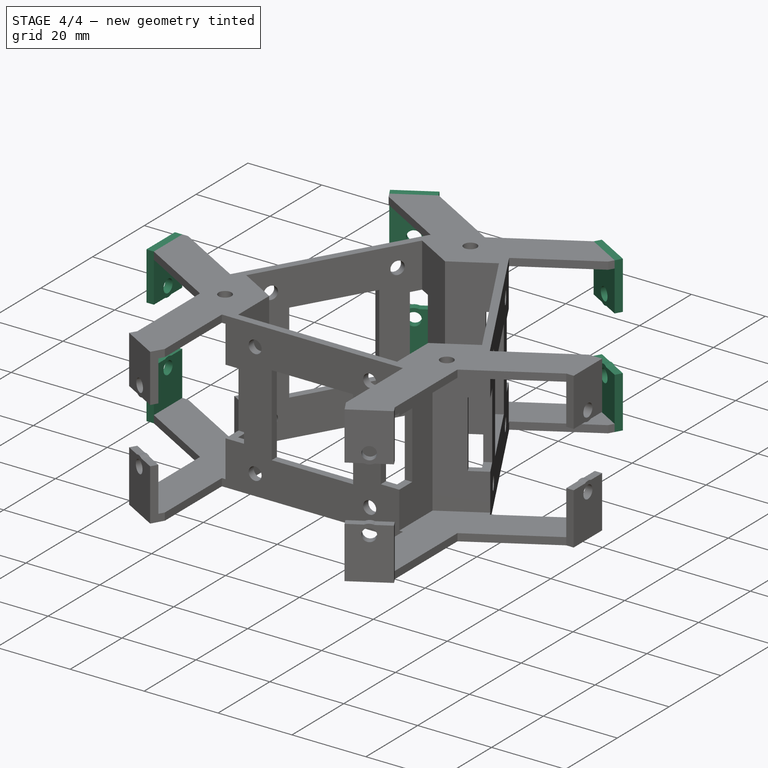
[diagram: stage 4 of 4 — iso view after this stage's code; geometry added in this stage tinted green]
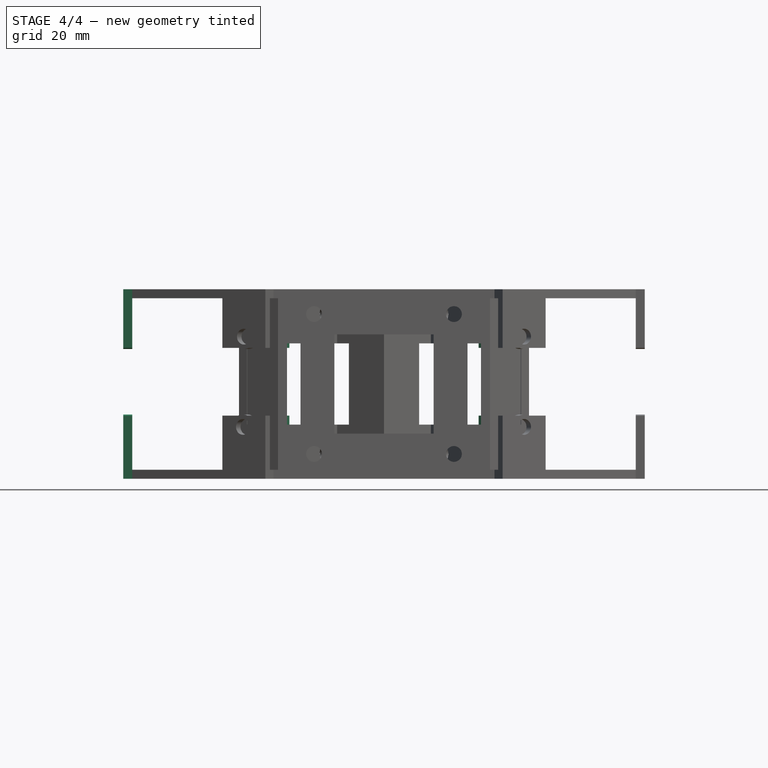
[diagram: stage 4 of 4 — front view after this stage's code; geometry added in this stage tinted green]
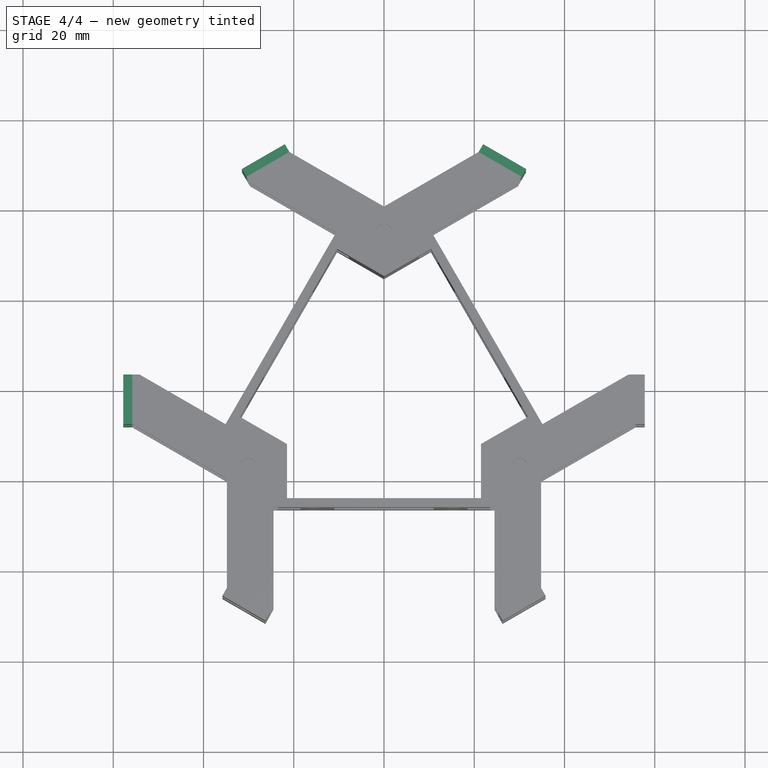
[diagram: stage 4 of 4 — top view after this stage's code; geometry added in this stage tinted green]
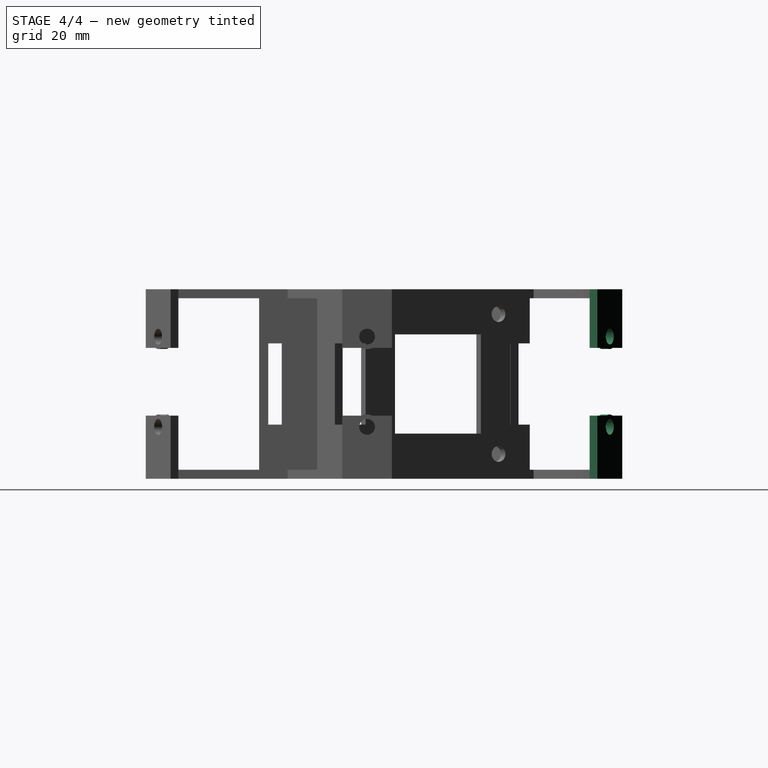
[diagram: stage 4 of 4 — right view after this stage's code; geometry added in this stage tinted green]
FEATURE [Sketcher::SketchObject] Sketch009
  ExternalGeometry = -> [Pad005]
  FullyConstrained = true
  MapMode = 5
  Placement = pos=(27.8981,48.3209,0) rot=(0.186157,0.694747,0.694747;2.77349rad)
  Support = -> [Pad005]
  sketch-geometry (14):
    g0: LineSegment StartX=-3 StartY=42 StartZ=0 EndX=8 EndY=42 EndZ=0
    g1: LineSegment StartX=8 StartY=42 StartZ=0 EndX=8 EndY=29 EndZ=0
    g2: LineSegment StartX=8 StartY=29 StartZ=0 EndX=3.64564 EndY=29 EndZ=0
    g3: LineSegment StartX=-3 StartY=29 StartZ=0 EndX=-3 EndY=42 EndZ=0
    g4: LineSegment StartX=-3 StartY=0 StartZ=0 EndX=8 EndY=0 EndZ=0
    g5: LineSegment StartX=8 StartY=0 StartZ=0 EndX=8 EndY=14 EndZ=0
    g6: LineSegment StartX=8 StartY=14 StartZ=0 EndX=3.64564 EndY=14 EndZ=0
    g7: LineSegment StartX=-3 StartY=14 StartZ=0 EndX=-3 EndY=0 EndZ=0
    g8: Circle CenterX=2.5 CenterY=31.5 CenterZ=0 NormalX=0 NormalY=0 NormalZ=1 AngleXU=0 Radius=1.75
    g9: ArcOfCircle CenterX=2.5 CenterY=31.5 CenterZ=0 NormalX=0 NormalY=0 NormalZ=1 AngleXU=0 Radius=2.75 StartAngle=4.28269 EndAngle=5.14209
    g10: Circle CenterX=2.5 CenterY=11.5 CenterZ=0 NormalX=0 NormalY=0 NormalZ=1 AngleXU=0 Radius=1.75
    g11: ArcOfCircle CenterX=2.5 CenterY=11.5 CenterZ=0 NormalX=0 NormalY=0 NormalZ=1 AngleXU=0 Radius=2.75 StartAngle=1.1411 EndAngle=2.0005
    g12: LineSegment StartX=1.35436 StartY=29 StartZ=0 EndX=-3 EndY=29 EndZ=0
    g13: LineSegment StartX=1.35436 StartY=14 StartZ=0 EndX=-3 EndY=14 EndZ=0
  constraints (38):
    c: Coincident(g0,g1)
    c: Coincident(g1,g2)
    c: Coincident(g12,g3)
    c: Coincident(g3,g0)
    c: Horizontal(g0)
    c: Horizontal(g2)
    c: Vertical(g1)
    c: Vertical(g3)
    c: Coincident(g0,g-3)
    c: Coincident(g4,g5)
    c: Coincident(g5,g6)
    c: Coincident(g13,g7)
    c: Coincident(g7,g4)
    c: Horizontal(g4)
    c: Horizontal(g6)
    c: Vertical(g5)
    c: Vertical(g7)
    c: Coincident(g4,g-4)
    c: Distance(g0) = 11
    c: Distance(g4) = 11
    c: Distance(g3) = 13
    c: Coincident(g9,g8)
    c: Coincident(g11,g10)
    c: Diameter(g8) = 3.5
    c: Diameter(g10) = 3.5
    c: Diameter(g11) = 5.5
    c: Diameter(g9) = 5.5
    c: Distance(g8,g2) = 2.5
    c: Distance(g8,g3) = 5.5
    c: Distance(g10,g6) = 2.5
    c: Distance(g8,g10) = 20
    c: Distance(g10,g7) = 5.5
    c: Coincident(g2,g9)
    c: Coincident(g12,g9)
    c: Tangent(g2,g12)
    c: Tangent(g6,g13)
    c: Coincident(g11,g6)
    c: Coincident(g11,g13)
FEATURE [PartDesign::Pad] Pad006
  BaseFeature = -> Pad005
  Direction = (1,1,1)
  Length = 2
  Length2 = 100
  Profile = -> Sketch009
  Type = 0
FEATURE [Sketcher::SketchObject] Sketch010
  ExternalGeometry = -> [Pad006]
  FullyConstrained = true
  MapMode = 5
  Placement = pos=(-27.898,48.3209,0) rot=(-0.186156,0.694747,0.694747;3.50969rad)
  Support = -> [Pad006]
  sketch-geometry (14):
    g0: LineSegment StartX=-7.9999 StartY=42 StartZ=0 EndX=3.0001 EndY=42 EndZ=0
    g1: LineSegment StartX=3.0001 StartY=42 StartZ=0 EndX=3.0001 EndY=29 EndZ=0
    g2: LineSegment StartX=3.0001 StartY=29 StartZ=0 EndX=-1.35426 EndY=29 EndZ=0
    g3: LineSegment StartX=-7.9999 StartY=29 StartZ=0 EndX=-7.9999 EndY=42 EndZ=0
    g4: LineSegment StartX=-7.9999 StartY=0 StartZ=0 EndX=3.0001 EndY=0 EndZ=0
    g5: LineSegment StartX=3.0001 StartY=0 StartZ=0 EndX=3.0001 EndY=14 EndZ=0
    g6: LineSegment StartX=3.0001 StartY=14 StartZ=0 EndX=-1.35426 EndY=14 EndZ=0
    g7: LineSegment StartX=-7.9999 StartY=14 StartZ=0 EndX=-7.9999 EndY=0 EndZ=0
    g8: Circle CenterX=-2.4999 CenterY=31.5 CenterZ=0 NormalX=0 NormalY=0 NormalZ=1 AngleXU=0 Radius=1.75
    g9: ArcOfCircle CenterX=-2.4999 CenterY=31.5 CenterZ=0 NormalX=0 NormalY=0 NormalZ=1 AngleXU=0 Radius=2.75 StartAngle=4.28269 EndAngle=5.14209
    g10: Circle CenterX=-2.4999 CenterY=11.5 CenterZ=0 NormalX=0 NormalY=0 NormalZ=1 AngleXU=0 Radius=1.75
    g11: ArcOfCircle CenterX=-2.4999 CenterY=11.5 CenterZ=0 NormalX=0 NormalY=0 NormalZ=1 AngleXU=0 Radius=2.75 StartAngle=1.1411 EndAngle=2.0005
    g12: LineSegment StartX=-3.64555 StartY=29 StartZ=0 EndX=-7.9999 EndY=29 EndZ=0
    g13: LineSegment StartX=-3.64555 StartY=14 StartZ=0 EndX=-7.9999 EndY=14 EndZ=0
  constraints (38):
    c: Coincident(g0,g1)
    c: Coincident(g1,g2)
    c: Coincident(g12,g3)
    c: Coincident(g3,g0)
    c: Horizontal(g0)
    c: Horizontal(g2)
    c: Vertical(g1)
    c: Vertical(g3)
    c: Coincident(g0,g-3)
    c: Coincident(g4,g5)
    c: Coincident(g5,g6)
    c: Coincident(g13,g7)
    c: Coincident(g7,g4)
    c: Horizontal(g4)
    c: Horizontal(g6)
    c: Vertical(g5)
    c: Vertical(g7)
    c: Coincident(g4,g-4)
    c: Distance(g0) = 11
    c: Distance(g4) = 11
    c: Distance(g3) = 13
    c: Coincident(g9,g8)
    c: Coincident(g11,g10)
    c: Distance(g8,g3) = 5.5
    c: Distance(g10,g7) = 5.5
    c: Distance(g8,g2) = 2.5
    c: Distance(g10,g6) = 2.5
    c: Distance(g8,g10) = 20
    c: Diameter(g8) = 3.5
    c: Diameter(g9) = 5.5
    c: Diameter(g10) = 3.5
    c: Diameter(g11) = 5.5
    c: Coincident(g2,g9)
    c: Coincident(g12,g9)
    c: Tangent(g2,g12)
    c: Coincident(g6,g11)
    c: Coincident(g13,g11)
    c: Tangent(g6,g13)
FEATURE [PartDesign::Pad] Pad007
  BaseFeature = -> Pad006
  Direction = (1,1,1)
  Length = 2
  Length2 = 100
  Profile = -> Sketch010
  Type = 0
FEATURE [Sketcher::SketchObject] Sketch011
  ExternalGeometry = -> [Pad007]
  FullyConstrained = true
  MapMode = 5
  Placement = pos=(-55.7962,0,0) rot=(0.57735,-0.57735,-0.57735;2.0944rad)
  Support = -> [Pad007]
  sketch-geometry (14):
    g0: LineSegment StartX=-3 StartY=42 StartZ=0 EndX=8 EndY=42 EndZ=0
    g1: LineSegment StartX=8 StartY=42 StartZ=0 EndX=8 EndY=29 EndZ=0
    g2: LineSegment StartX=8 StartY=29 StartZ=0 EndX=3.64564 EndY=29 EndZ=0
    g3: LineSegment StartX=-3 StartY=29 StartZ=0 EndX=-3 EndY=42 EndZ=0
    g4: LineSegment StartX=-3 StartY=0 StartZ=0 EndX=8 EndY=0 EndZ=0
    g5: LineSegment StartX=8 StartY=0 StartZ=0 EndX=8 EndY=14 EndZ=0
    g6: LineSegment StartX=8 StartY=14 StartZ=0 EndX=3.64564 EndY=14 EndZ=0
    g7: LineSegment StartX=-3 StartY=14 StartZ=0 EndX=-3 EndY=0 EndZ=0
    g8: Circle CenterX=2.5 CenterY=31.5 CenterZ=0 NormalX=0 NormalY=0 NormalZ=1 AngleXU=0 Radius=1.75
    g9: ArcOfCircle CenterX=2.5 CenterY=31.5 CenterZ=0 NormalX=0 NormalY=0 NormalZ=1 AngleXU=0 Radius=2.75 StartAngle=4.28269 EndAngle=5.14209
    g10: Circle CenterX=2.5 CenterY=11.5 CenterZ=0 NormalX=0 NormalY=0 NormalZ=1 AngleXU=0 Radius=1.75
    g11: ArcOfCircle CenterX=2.5 CenterY=11.5 CenterZ=0 NormalX=0 NormalY=0 NormalZ=1 AngleXU=0 Radius=2.75 StartAngle=1.1411 EndAngle=2.0005
    g12: LineSegment StartX=1.35436 StartY=14 StartZ=0 EndX=-3 EndY=14 EndZ=0
    g13: LineSegment StartX=1.35436 StartY=29 StartZ=0 EndX=-3 EndY=29 EndZ=0
  constraints (38):
    c: Coincident(g0,g1)
    c: Coincident(g1,g2)
    c: Coincident(g13,g3)
    c: Coincident(g3,g0)
    c: Horizontal(g0)
    c: Horizontal(g2)
    c: Vertical(g1)
    c: Vertical(g3)
    c: Coincident(g0,g-3)
    c: Coincident(g4,g5)
    c: Coincident(g5,g6)
    c: Coincident(g12,g7)
    c: Coincident(g7,g4)
    c: Horizontal(g4)
    c: Horizontal(g6)
    c: Vertical(g5)
    c: Vertical(g7)
    c: Coincident(g4,g-4)
    c: Distance(g0) = 11
    c: Distance(g4) = 11
    c: Distance(g3) = 13
    c: Coincident(g9,g8)
    c: Coincident(g11,g10)
    c: Distance(g8,g3) = 5.5
    c: Distance(g10,g7) = 5.5
    c: Distance(g8,g2) = 2.5
    c: Distance(g10,g6) = 2.5
    c: Distance(g8,g10) = 20
    c: Diameter(g8) = 3.5
    c: Diameter(g9) = 5.5
    c: Diameter(g10) = 3.5
    c: Diameter(g11) = 5.5
    c: Coincident(g6,g11)
    c: Coincident(g12,g11)
    c: Tangent(g6,g12)
    c: Coincident(g2,g9)
    c: Coincident(g13,g9)
    c: Tangent(g2,g13)
FEATURE [PartDesign::Pad] Pad008
  BaseFeature = -> Pad007
  Direction = (1,1,1)
  Length = 2
  Length2 = 100
  Profile = -> Sketch011
  Type = 0
FEATURE [PartDesign::Body] Body
  Group = -> [Sketch,Pad,Sketch001,Pocket,Sketch002,Pocket001,Sketch003,Pocket002,Sketch004,Pad001,Sketch005,Pad002,Sketch006,Pad003,Sketch007,Pad004,Sketch008,Pad005,Sketch009,Pad006,Sketch010,Pad007,Sketch011,Pad008]
  Origin = -> Origin
  Tip = -> Pad008
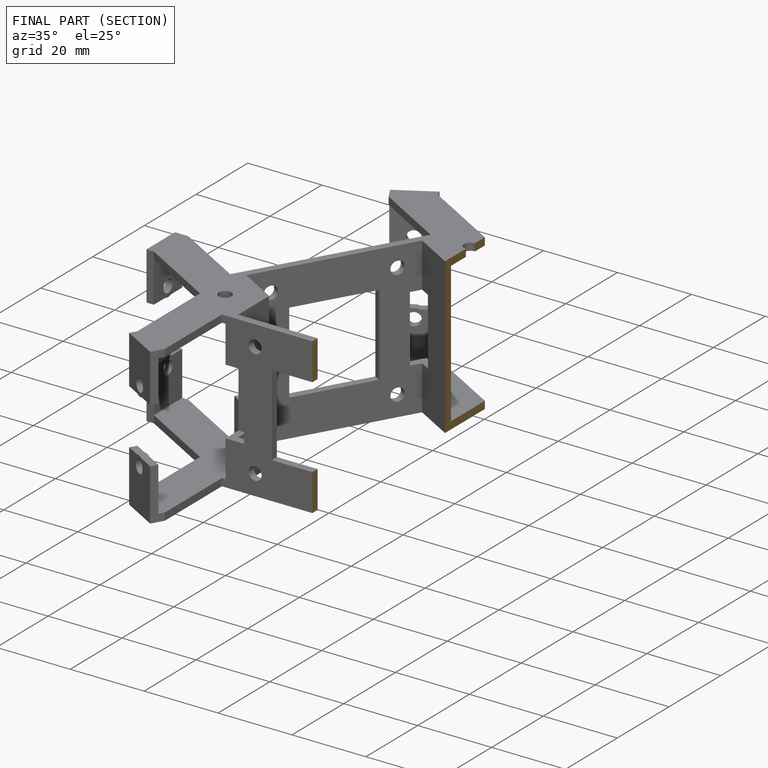
[diagram: finished part — half-section view (interior)]
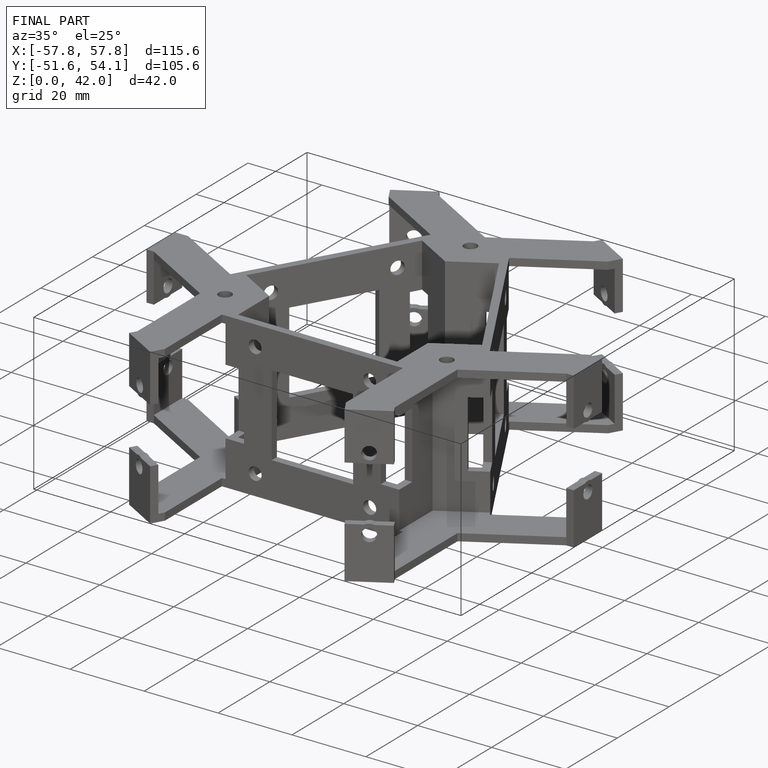
[diagram: finished part — iso view with bounding-box wireframe]
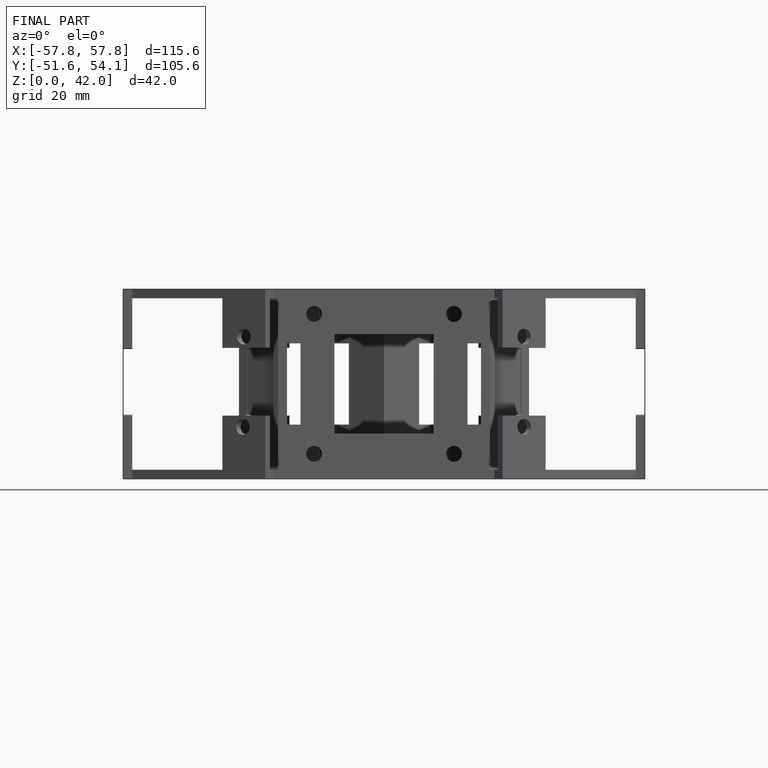
[diagram: finished part — front view with bounding-box wireframe]
